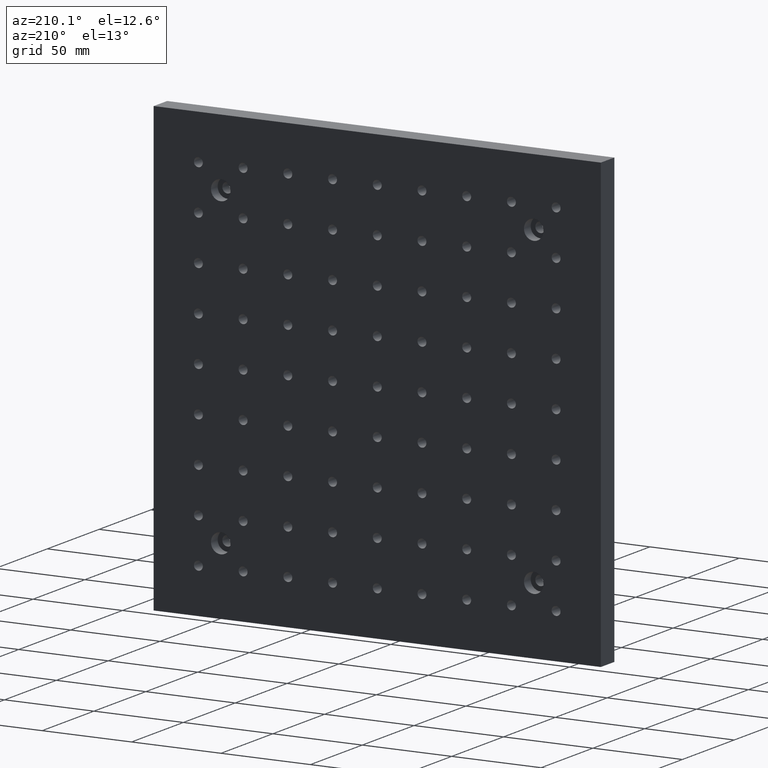
[diagram: clean part render]
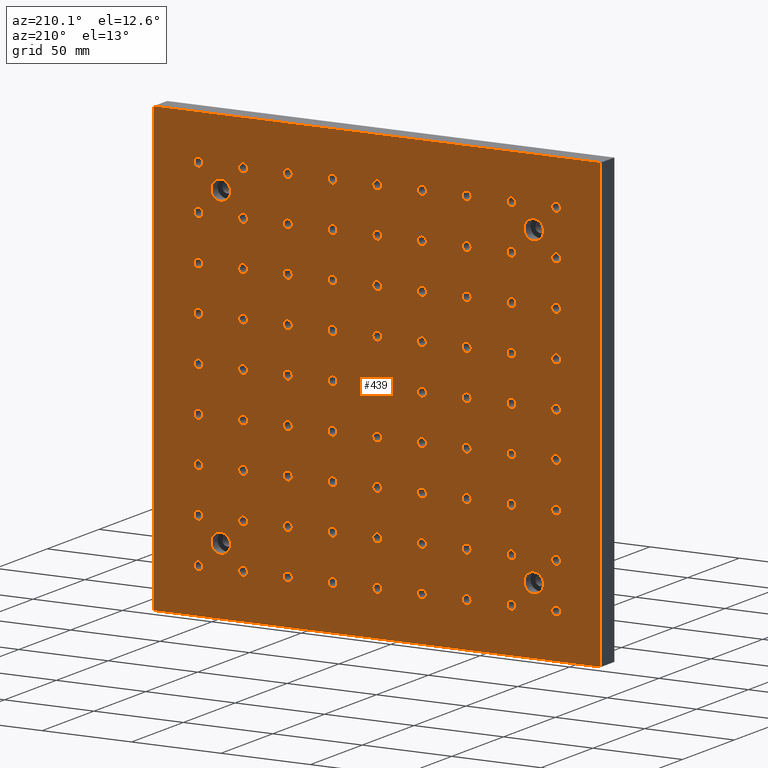
[diagram: same view with one face highlighted and labeled with its STEP entity id]
A machine part, auxiliary view. The second image highlights one B-rep face of the part: STEP entity #439.
In plain terms, the highlighted planar face has unit normal (0, 1, 0).
Its self-contained STEP definition (entity closure, byte-faithful):
#1 = CARTESIAN_POINT ( 'NONE',  ( 2.053912595556539600E-12, 13.00000000000000178, 97.50000000000000000 ) ) ;
#4 = AXIS2_PLACEMENT_3D ( 'NONE', #2720, #707, #1910 ) ;
#6 = AXIS2_PLACEMENT_3D ( 'NONE', #1002, #3008, #1790 ) ;
#8 = CARTESIAN_POINT ( 'NONE',  ( 50.00000000000181899, 13.00000000000000178, 75.00000000000001421 ) ) ;
#9 = CIRCLE ( 'NONE', #2645, 2.499999999999995559 ) ;
#10 = CARTESIAN_POINT ( 'NONE',  ( -100.0000000000000284, 13.00000000000000178, -100.0000000000000000 ) ) ;
#12 = AXIS2_PLACEMENT_3D ( 'NONE', #682, #2443, #185 ) ;
#15 = AXIS2_PLACEMENT_3D ( 'NONE', #1733, #761, #2261 ) ;
#23 = EDGE_CURVE ( 'NONE', #1074, #1074, #1838, .T. ) ;
#25 = DIRECTION ( 'NONE',  ( -0.000000000000000000, -1.000000000000000000, -0.000000000000000000 ) ) ;
#26 = EDGE_LOOP ( 'NONE', ( #1316 ) ) ;
#28 = ORIENTED_EDGE ( 'NONE', *, *, #448, .T. ) ;
#34 = VERTEX_POINT ( 'NONE', #1584 ) ;
#36 = EDGE_CURVE ( 'NONE', #37, #37, #788, .T. ) ;
#37 = VERTEX_POINT ( 'NONE', #583 ) ;
#49 = CARTESIAN_POINT ( 'NONE',  ( 100.0000000000002274, 13.00000000000000178, -77.50000000000001421 ) ) ;
#53 = DIRECTION ( 'NONE',  ( 0.000000000000000000, 0.000000000000000000, -1.000000000000000000 ) ) ;
#55 = CIRCLE ( 'NONE', #315, 2.500000000000002220 ) ;
#56 = CARTESIAN_POINT ( 'NONE',  ( -24.99999999999924682, 13.00000000000000178, -24.99999999999999289 ) ) ;
#58 = CIRCLE ( 'NONE', #3126, 2.499999999999995115 ) ;
#66 = EDGE_LOOP ( 'NONE', ( #2910 ) ) ;
#67 = CARTESIAN_POINT ( 'NONE',  ( -24.99999999999871747, 13.00000000000000178, 24.99999999999999289 ) ) ;
#68 = CARTESIAN_POINT ( 'NONE',  ( 50.00000000000181899, 13.00000000000000178, 72.50000000000001421 ) ) ;
#73 = EDGE_CURVE ( 'NONE', #2863, #2863, #304, .T. ) ;
#74 = EDGE_LOOP ( 'NONE', ( #2728 ) ) ;
#79 = FACE_BOUND ( 'NONE', #170, .T. ) ;
#81 = EDGE_LOOP ( 'NONE', ( #1663 ) ) ;
#82 = CARTESIAN_POINT ( 'NONE',  ( 50.00000000000076739, 13.00000000000000178, -27.49999999999998934 ) ) ;
#85 = CARTESIAN_POINT ( 'NONE',  ( 100.0000000000018048, 13.00000000000000178, 75.00000000000001421 ) ) ;
#87 = EDGE_CURVE ( 'NONE', #2315, #2315, #1628, .T. ) ;
#88 = ORIENTED_EDGE ( 'NONE', *, *, #1010, .T. ) ;
#89 = DIRECTION ( 'NONE',  ( -0.000000000000000000, -1.000000000000000000, -0.000000000000000000 ) ) ;
#92 = FACE_BOUND ( 'NONE', #2228, .T. ) ;
#93 = EDGE_CURVE ( 'NONE', #1604, #1604, #886, .T. ) ;
#94 = EDGE_CURVE ( 'NONE', #2599, #2599, #2058, .T. ) ;
#98 = AXIS2_PLACEMENT_3D ( 'NONE', #2041, #3050, #776 ) ;
#99 = VERTEX_POINT ( 'NONE', #1354 ) ;
#101 = CIRCLE ( 'NONE', #1633, 2.499999999999995115 ) ;
#103 = EDGE_LOOP ( 'NONE', ( #2832 ) ) ;
#108 = CIRCLE ( 'NONE', #536, 2.500000000000002220 ) ;
#110 = DIRECTION ( 'NONE',  ( 0.000000000000000000, 0.000000000000000000, -1.000000000000000000 ) ) ;
#114 = FACE_BOUND ( 'NONE', #2480, .T. ) ;
#115 = VERTEX_POINT ( 'NONE', #856 ) ;
#120 = EDGE_LOOP ( 'NONE', ( #1268 ) ) ;
#129 = FACE_BOUND ( 'NONE', #1506, .T. ) ;
#130 = CARTESIAN_POINT ( 'NONE',  ( -74.99999999999820943, 13.00000000000000178, 72.50000000000001421 ) ) ;
#132 = EDGE_CURVE ( 'NONE', #1061, #1061, #573, .T. ) ;
#133 = CARTESIAN_POINT ( 'NONE',  ( 100.0000000000015348, 13.00000000000000178, 47.50000000000002132 ) ) ;
#135 = DIRECTION ( 'NONE',  ( 0.000000000000000000, 0.000000000000000000, -1.000000000000000000 ) ) ;
#137 = EDGE_CURVE ( 'NONE', #3136, #3136, #1049, .T. ) ;
#145 = FACE_OUTER_BOUND ( 'NONE', #2426, .T. ) ;
#146 = VERTEX_POINT ( 'NONE', #408 ) ;
#148 = EDGE_LOOP ( 'NONE', ( #462 ) ) ;
#150 = VERTEX_POINT ( 'NONE', #614 ) ;
#155 = EDGE_LOOP ( 'NONE', ( #2329 ) ) ;
#166 = FACE_BOUND ( 'NONE', #3049, .T. ) ;
#167 = EDGE_CURVE ( 'NONE', #332, #332, #1472, .T. ) ;
#170 = EDGE_LOOP ( 'NONE', ( #1922 ) ) ;
#172 = DIRECTION ( 'NONE',  ( 0.000000000000000000, 0.000000000000000000, -1.000000000000000000 ) ) ;
#173 = DIRECTION ( 'NONE',  ( -0.000000000000000000, -1.000000000000000000, -0.000000000000000000 ) ) ;
#180 = DIRECTION ( 'NONE',  ( 0.000000000000000000, 0.000000000000000000, -1.000000000000000000 ) ) ;
#182 = CARTESIAN_POINT ( 'NONE',  ( 75.00000000000022737, 13.00000000000000178, -75.00000000000001421 ) ) ;
#183 = EDGE_LOOP ( 'NONE', ( #997 ) ) ;
#185 = DIRECTION ( 'NONE',  ( 0.000000000000000000, 0.000000000000000000, -1.000000000000000000 ) ) ;
#186 = CARTESIAN_POINT ( 'NONE',  ( 50.00000000000024869, 13.00000000000000178, -75.00000000000001421 ) ) ;
#191 = ORIENTED_EDGE ( 'NONE', *, *, #558, .T. ) ;
#194 = CARTESIAN_POINT ( 'NONE',  ( 75.00000000000181899, 13.00000000000000178, 75.00000000000001421 ) ) ;
#196 = FACE_BOUND ( 'NONE', #103, .T. ) ;
#197 = VERTEX_POINT ( 'NONE', #2471 ) ;
#202 = DIRECTION ( 'NONE',  ( 0.000000000000000000, 0.000000000000000000, -1.000000000000000000 ) ) ;
#203 = DIRECTION ( 'NONE',  ( -0.000000000000000000, -1.000000000000000000, -0.000000000000000000 ) ) ;
#211 = CARTESIAN_POINT ( 'NONE',  ( -24.99999999999975842, 13.00000000000000178, -75.00000000000001421 ) ) ;
#218 = DIRECTION ( 'NONE',  ( -0.000000000000000000, -1.000000000000000000, -0.000000000000000000 ) ) ;
#226 = CIRCLE ( 'NONE', #2126, 2.499999999999995559 ) ;
#227 = CARTESIAN_POINT ( 'NONE',  ( -74.99999999999977263, 13.00000000000000178, -75.00000000000001421 ) ) ;
#229 = AXIS2_PLACEMENT_3D ( 'NONE', #2519, #1203, #461 ) ;
#232 = DIRECTION ( 'NONE',  ( -0.000000000000000000, -1.000000000000000000, -0.000000000000000000 ) ) ;
#235 = FACE_BOUND ( 'NONE', #697, .T. ) ;
#236 = CARTESIAN_POINT ( 'NONE',  ( 7.494005416219806648E-13, 13.00000000000000178, -27.49999999999998934 ) ) ;
#239 = EDGE_CURVE ( 'NONE', #2369, #2369, #1307, .T. ) ;
#240 = DIRECTION ( 'NONE',  ( -1.000000000000000000, -0.000000000000000000, 0.000000000000000000 ) ) ;
#243 = DIRECTION ( 'NONE',  ( -0.000000000000000000, -1.000000000000000000, -0.000000000000000000 ) ) ;
#247 = EDGE_LOOP ( 'NONE', ( #2694 ) ) ;
#248 = CARTESIAN_POINT ( 'NONE',  ( -99.99999999999899103, 13.00000000000000178, 0.000000000000000000 ) ) ;
#251 = CARTESIAN_POINT ( 'NONE',  ( 87.49999999999808153, 13.00000000000000178, -93.00000000000001421 ) ) ;
#256 = ORIENTED_EDGE ( 'NONE', *, *, #1764, .T. ) ;
#258 = AXIS2_PLACEMENT_3D ( 'NONE', #2235, #3042, #2990 ) ;
#261 = AXIS2_PLACEMENT_3D ( 'NONE', #596, #3147, #1901 ) ;
#264 = EDGE_CURVE ( 'NONE', #661, #1669, #2015, .T. ) ;
#270 = CIRCLE ( 'NONE', #2123, 2.500000000000002220 ) ;
#271 = DIRECTION ( 'NONE',  ( 0.000000000000000000, 0.000000000000000000, -1.000000000000000000 ) ) ;
#276 = AXIS2_PLACEMENT_3D ( 'NONE', #1892, #2147, #3191 ) ;
#281 = DIRECTION ( 'NONE',  ( -0.000000000000000000, -1.000000000000000000, -0.000000000000000000 ) ) ;
#284 = CARTESIAN_POINT ( 'NONE',  ( -74.99999999999977263, 13.00000000000000178, -77.50000000000001421 ) ) ;
#285 = CARTESIAN_POINT ( 'NONE',  ( 0.000000000000000000, 13.00000000000000178, 125.0000000000000000 ) ) ;
#286 = DIRECTION ( 'NONE',  ( 0.000000000000000000, 0.000000000000000000, -1.000000000000000000 ) ) ;
#288 = ORIENTED_EDGE ( 'NONE', *, *, #1718, .T. ) ;
#290 = ORIENTED_EDGE ( 'NONE', *, *, #401, .T. ) ;
#297 = EDGE_CURVE ( 'NONE', #1857, #1857, #829, .T. ) ;
#301 = CARTESIAN_POINT ( 'NONE',  ( -49.99999999999924682, 13.00000000000000178, -24.99999999999999289 ) ) ;
#304 = CIRCLE ( 'NONE', #2161, 2.500000000000002220 ) ;
#306 = CIRCLE ( 'NONE', #2166, 2.499999999999995559 ) ;
#308 = EDGE_LOOP ( 'NONE', ( #1771 ) ) ;
#311 = EDGE_CURVE ( 'NONE', #99, #99, #3111, .T. ) ;
#314 = CARTESIAN_POINT ( 'NONE',  ( -99.99999999999874944, 13.00000000000000178, 22.50000000000000000 ) ) ;
#315 = AXIS2_PLACEMENT_3D ( 'NONE', #1033, #2046, #3054 ) ;
#321 = CIRCLE ( 'NONE', #1321, 5.500000000000005329 ) ;
#323 = DIRECTION ( 'NONE',  ( 0.000000000000000000, 0.000000000000000000, -1.000000000000000000 ) ) ;
#327 = ORIENTED_EDGE ( 'NONE', *, *, #730, .T. ) ;
#330 = ORIENTED_EDGE ( 'NONE', *, *, #2031, .T. ) ;
#331 = EDGE_CURVE ( 'NONE', #2060, #2060, #2107, .T. ) ;
#332 = VERTEX_POINT ( 'NONE', #2356 ) ;
#336 = EDGE_LOOP ( 'NONE', ( #2375 ) ) ;
#340 = DIRECTION ( 'NONE',  ( 0.000000000000000000, 0.000000000000000000, -1.000000000000000000 ) ) ;
#344 = VERTEX_POINT ( 'NONE', #1352 ) ;
#346 = CARTESIAN_POINT ( 'NONE',  ( -24.99999999999871747, 13.00000000000000178, 22.50000000000000000 ) ) ;
#349 = CARTESIAN_POINT ( 'NONE',  ( 25.00000000000021672, 13.00000000000000178, -75.00000000000001421 ) ) ;
#352 = EDGE_LOOP ( 'NONE', ( #28 ) ) ;
#355 = CARTESIAN_POINT ( 'NONE',  ( 75.00000000000206057, 13.00000000000000178, 100.0000000000000000 ) ) ;
#358 = CARTESIAN_POINT ( 'NONE',  ( -50.00000000000002842, 13.00000000000000178, -102.5000000000000142 ) ) ;
#368 = AXIS2_PLACEMENT_3D ( 'NONE', #194, #2742, #2222 ) ;
#374 = ORIENTED_EDGE ( 'NONE', *, *, #622, .T. ) ;
#375 = CIRCLE ( 'NONE', #1492, 2.499999999999995115 ) ;
#376 = FACE_BOUND ( 'NONE', #820, .T. ) ;
#377 = CARTESIAN_POINT ( 'NONE',  ( 25.00000000000127187, 13.00000000000000178, 22.50000000000000000 ) ) ;
#382 = DIRECTION ( 'NONE',  ( -0.000000000000000000, -1.000000000000000000, -0.000000000000000000 ) ) ;
#390 = EDGE_LOOP ( 'NONE', ( #1428 ) ) ;
#391 = FACE_BOUND ( 'NONE', #1626, .T. ) ;
#392 = VERTEX_POINT ( 'NONE', #2193 ) ;
#397 = CARTESIAN_POINT ( 'NONE',  ( 1.540434446667404700E-12, 13.00000000000000178, 50.00000000000001421 ) ) ;
#401 = EDGE_CURVE ( 'NONE', #1567, #1567, #3063, .T. ) ;
#403 = EDGE_LOOP ( 'NONE', ( #1177 ) ) ;
#404 = CARTESIAN_POINT ( 'NONE',  ( -24.99999999999845457, 13.00000000000000178, 50.00000000000001421 ) ) ;
#405 = DIRECTION ( 'NONE',  ( 0.000000000000000000, 0.000000000000000000, -1.000000000000000000 ) ) ;
#406 = ORIENTED_EDGE ( 'NONE', *, *, #297, .T. ) ;
#407 = FACE_BOUND ( 'NONE', #403, .T. ) ;
#408 = CARTESIAN_POINT ( 'NONE',  ( -74.99999999999795364, 13.00000000000000178, 97.50000000000000000 ) ) ;
#409 = CIRCLE ( 'NONE', #3164, 2.499999999999995559 ) ;
#416 = DIRECTION ( 'NONE',  ( 0.000000000000000000, 0.000000000000000000, -1.000000000000000000 ) ) ;
#425 = CIRCLE ( 'NONE', #2022, 2.499999999999995115 ) ;
#428 = FACE_BOUND ( 'NONE', #2868, .T. ) ;
#433 = ORIENTED_EDGE ( 'NONE', *, *, #264, .T. ) ;
#435 = CARTESIAN_POINT ( 'NONE',  ( -49.99999999999899103, 13.00000000000000178, -2.499999999999995559 ) ) ;
#439 = ADVANCED_FACE ( 'NONE', ( #376, #2365, #114, #3130, #1123, #2153, #645, #391, #1351, #1667, #92, #1336, #1387, #2401, #129, #3181, #1140, #3162, #2120, #2353, #662, #855, #2170, #79, #1600, #1086, #3109, #887, #1869, #2137, #2874, #870, #2911, #1652, #2418, #611, #2100, #834, #2625, #1849, #1367, #2610, #2660, #1882, #2890, #145, #625, #1632, #2695, #3001, #2470, #2192, #2436, #3270, #1175, #994, #1470, #407, #979, #1440, #1952, #2006, #729, #3019, #2945, #2729, #1735, #2508, #1707, #2207, #3197, #449, #2263, #3213, #676, #746, #166, #1686, #925, #428, #481, #1489, #196, #2675, #235, #3256 ), #1205, .T. ) ;
#448 = EDGE_CURVE ( 'NONE', #2664, #2664, #1004, .T. ) ;
#449 = FACE_BOUND ( 'NONE', #2941, .T. ) ;
#453 = CARTESIAN_POINT ( 'NONE',  ( -99.99999999999846523, 13.00000000000000178, 50.00000000000001421 ) ) ;
#461 = DIRECTION ( 'NONE',  ( 0.000000000000000000, 0.000000000000000000, -1.000000000000000000 ) ) ;
#462 = ORIENTED_EDGE ( 'NONE', *, *, #1099, .T. ) ;
#469 = DIRECTION ( 'NONE',  ( -0.000000000000000000, -1.000000000000000000, -0.000000000000000000 ) ) ;
#471 = LINE ( 'NONE', #285, #747 ) ;
#473 = CIRCLE ( 'NONE', #2583, 5.500000000000005329 ) ;
#479 = DIRECTION ( 'NONE',  ( -0.000000000000000000, -1.000000000000000000, -0.000000000000000000 ) ) ;
#481 = FACE_BOUND ( 'NONE', #2605, .T. ) ;
#483 = CIRCLE ( 'NONE', #1109, 2.500000000000002220 ) ;
#489 = EDGE_CURVE ( 'NONE', #2648, #2648, #2111, .T. ) ;
#491 = CARTESIAN_POINT ( 'NONE',  ( -25.00000000000002132, 13.00000000000000178, -100.0000000000000000 ) ) ;
#499 = DIRECTION ( 'NONE',  ( -0.000000000000000000, -1.000000000000000000, -0.000000000000000000 ) ) ;
#500 = VERTEX_POINT ( 'NONE', #236 ) ;
#502 = CARTESIAN_POINT ( 'NONE',  ( 75.00000000000153477, 13.00000000000000178, 47.50000000000002132 ) ) ;
#504 = DIRECTION ( 'NONE',  ( 0.000000000000000000, 0.000000000000000000, -1.000000000000000000 ) ) ;
#509 = EDGE_LOOP ( 'NONE', ( #2091 ) ) ;
#513 = DIRECTION ( 'NONE',  ( 0.000000000000000000, 0.000000000000000000, -1.000000000000000000 ) ) ;
#514 = VERTEX_POINT ( 'NONE', #1 ) ;
#516 = VERTEX_POINT ( 'NONE', #251 ) ;
#524 = AXIS2_PLACEMENT_3D ( 'NONE', #1145, #3204, #416 ) ;
#526 = EDGE_LOOP ( 'NONE', ( #2194 ) ) ;
#527 = AXIS2_PLACEMENT_3D ( 'NONE', #3103, #828, #340 ) ;
#531 = CIRCLE ( 'NONE', #2331, 2.499999999999995115 ) ;
#533 = ORIENTED_EDGE ( 'NONE', *, *, #1859, .T. ) ;
#535 = VERTEX_POINT ( 'NONE', #1291 ) ;
#536 = AXIS2_PLACEMENT_3D ( 'NONE', #2515, #243, #1254 ) ;
#545 = CIRCLE ( 'NONE', #1224, 2.499999999999995115 ) ;
#553 = CARTESIAN_POINT ( 'NONE',  ( 100.0000000000010516, 13.00000000000000178, -2.499999999999995559 ) ) ;
#554 = CARTESIAN_POINT ( 'NONE',  ( -49.99999999999872813, 13.00000000000000178, 24.99999999999999289 ) ) ;
#558 = EDGE_CURVE ( 'NONE', #3217, #3217, #739, .T. ) ;
#560 = DIRECTION ( 'NONE',  ( 0.000000000000000000, 0.000000000000000000, -1.000000000000000000 ) ) ;
#565 = VERTEX_POINT ( 'NONE', #553 ) ;
#568 = ORIENTED_EDGE ( 'NONE', *, *, #2756, .T. ) ;
#573 = CIRCLE ( 'NONE', #524, 2.499999999999995115 ) ;
#574 = AXIS2_PLACEMENT_3D ( 'NONE', #2350, #2871, #323 ) ;
#579 = AXIS2_PLACEMENT_3D ( 'NONE', #1008, #3032, #2565 ) ;
#583 = CARTESIAN_POINT ( 'NONE',  ( 25.00000000000152056, 13.00000000000000178, 47.50000000000002132 ) ) ;
#589 = ORIENTED_EDGE ( 'NONE', *, *, #1212, .T. ) ;
#590 = CIRCLE ( 'NONE', #963, 2.499999999999995115 ) ;
#594 = DIRECTION ( 'NONE',  ( 0.000000000000000000, 0.000000000000000000, -1.000000000000000000 ) ) ;
#596 = CARTESIAN_POINT ( 'NONE',  ( -49.99999999999976552, 13.00000000000000178, -75.00000000000001421 ) ) ;
#597 = VERTEX_POINT ( 'NONE', #836 ) ;
#599 = CARTESIAN_POINT ( 'NONE',  ( 1.540434446667404700E-12, 13.00000000000000178, 47.50000000000002132 ) ) ;
#611 = FACE_BOUND ( 'NONE', #1438, .T. ) ;
#614 = CARTESIAN_POINT ( 'NONE',  ( 100.0000000000012790, 13.00000000000000178, 22.50000000000000000 ) ) ;
#618 = EDGE_CURVE ( 'NONE', #1895, #661, #3090, .T. ) ;
#622 = EDGE_CURVE ( 'NONE', #2421, #2421, #473, .T. ) ;
#625 = FACE_BOUND ( 'NONE', #247, .T. ) ;
#626 = VERTEX_POINT ( 'NONE', #1634 ) ;
#627 = AXIS2_PLACEMENT_3D ( 'NONE', #1674, #173, #1711 ) ;
#636 = CARTESIAN_POINT ( 'NONE',  ( 7.494005416219806648E-13, 13.00000000000000178, -24.99999999999999289 ) ) ;
#644 = AXIS2_PLACEMENT_3D ( 'NONE', #355, #938, #1385 ) ;
#645 = FACE_BOUND ( 'NONE', #1007, .T. ) ;
#647 = VERTEX_POINT ( 'NONE', #1653 ) ;
#649 = EDGE_LOOP ( 'NONE', ( #1563 ) ) ;
#650 = EDGE_CURVE ( 'NONE', #2895, #2895, #306, .T. ) ;
#651 = CARTESIAN_POINT ( 'NONE',  ( 1.013078509970455343E-12, 13.00000000000000178, -2.499999999999995559 ) ) ;
#652 = CARTESIAN_POINT ( 'NONE',  ( 87.49999999999808153, 13.00000000000000178, 87.50000000000001421 ) ) ;
#653 = DIRECTION ( 'NONE',  ( 0.000000000000000000, 0.000000000000000000, -1.000000000000000000 ) ) ;
#661 = VERTEX_POINT ( 'NONE', #2276 ) ;
#662 = FACE_BOUND ( 'NONE', #1361, .T. ) ;
#665 = EDGE_LOOP ( 'NONE', ( #1198 ) ) ;
#666 = CARTESIAN_POINT ( 'NONE',  ( -99.99999999999899103, 13.00000000000000178, -2.499999999999995559 ) ) ;
#674 = DIRECTION ( 'NONE',  ( 0.000000000000000000, 0.000000000000000000, -1.000000000000000000 ) ) ;
#676 = FACE_BOUND ( 'NONE', #2288, .T. ) ;
#677 = VERTEX_POINT ( 'NONE', #2154 ) ;
#682 = CARTESIAN_POINT ( 'NONE',  ( 100.0000000000007532, 13.00000000000000178, -24.99999999999999289 ) ) ;
#686 = EDGE_CURVE ( 'NONE', #913, #913, #3018, .T. ) ;
#687 = EDGE_LOOP ( 'NONE', ( #2833 ) ) ;
#690 = EDGE_CURVE ( 'NONE', #150, #150, #790, .T. ) ;
#693 = CIRCLE ( 'NONE', #2117, 2.499999999999995115 ) ;
#694 = DIRECTION ( 'NONE',  ( -0.000000000000000000, -1.000000000000000000, -0.000000000000000000 ) ) ;
#696 = CARTESIAN_POINT ( 'NONE',  ( -50.00000000000002842, 13.00000000000000178, -100.0000000000000000 ) ) ;
#697 = EDGE_LOOP ( 'NONE', ( #2620 ) ) ;
#705 = CARTESIAN_POINT ( 'NONE',  ( -75.00000000000004263, 13.00000000000000178, -100.0000000000000000 ) ) ;
#707 = DIRECTION ( 'NONE',  ( -0.000000000000000000, -1.000000000000000000, -0.000000000000000000 ) ) ;
#713 = CARTESIAN_POINT ( 'NONE',  ( 4.996003610813204432E-13, 13.00000000000000178, -50.00000000000000000 ) ) ;
#714 = EDGE_LOOP ( 'NONE', ( #533 ) ) ;
#717 = EDGE_LOOP ( 'NONE', ( #191 ) ) ;
#725 = EDGE_CURVE ( 'NONE', #2628, #2628, #1954, .T. ) ;
#729 = FACE_BOUND ( 'NONE', #2633, .T. ) ;
#730 = EDGE_CURVE ( 'NONE', #1159, #1159, #2061, .T. ) ;
#733 = VERTEX_POINT ( 'NONE', #982 ) ;
#739 = CIRCLE ( 'NONE', #1741, 2.499999999999995559 ) ;
#742 = DIRECTION ( 'NONE',  ( -0.000000000000000000, -1.000000000000000000, -0.000000000000000000 ) ) ;
#743 = AXIS2_PLACEMENT_3D ( 'NONE', #3210, #694, #1702 ) ;
#746 = FACE_BOUND ( 'NONE', #1092, .T. ) ;
#747 = VECTOR ( 'NONE', #2034, 1000.000000000000000 ) ;
#748 = VERTEX_POINT ( 'NONE', #2264 ) ;
#750 = AXIS2_PLACEMENT_3D ( 'NONE', #2702, #2950, #1461 ) ;
#754 = CIRCLE ( 'NONE', #1855, 2.499999999999995559 ) ;
#755 = DIRECTION ( 'NONE',  ( 0.000000000000000000, 0.000000000000000000, -1.000000000000000000 ) ) ;
#759 = ORIENTED_EDGE ( 'NONE', *, *, #686, .T. ) ;
#761 = DIRECTION ( 'NONE',  ( -0.000000000000000000, -1.000000000000000000, -0.000000000000000000 ) ) ;
#768 = CARTESIAN_POINT ( 'NONE',  ( 25.00000000000074252, 13.00000000000000178, -24.99999999999999289 ) ) ;
#773 = ORIENTED_EDGE ( 'NONE', *, *, #2312, .T. ) ;
#776 = DIRECTION ( 'NONE',  ( 0.000000000000000000, 0.000000000000000000, -1.000000000000000000 ) ) ;
#780 = EDGE_CURVE ( 'NONE', #1924, #1924, #2634, .T. ) ;
#788 = CIRCLE ( 'NONE', #2536, 2.499999999999995115 ) ;
#790 = CIRCLE ( 'NONE', #574, 2.499999999999995115 ) ;
#793 = DIRECTION ( 'NONE',  ( 0.000000000000000000, 0.000000000000000000, -1.000000000000000000 ) ) ;
#797 = CIRCLE ( 'NONE', #1174, 2.500000000000002220 ) ;
#806 = ORIENTED_EDGE ( 'NONE', *, *, #3138, .T. ) ;
#807 = CARTESIAN_POINT ( 'NONE',  ( 125.0000000000000000, 13.00000000000000178, 0.000000000000000000 ) ) ;
#810 = ORIENTED_EDGE ( 'NONE', *, *, #2407, .T. ) ;
#811 = VERTEX_POINT ( 'NONE', #284 ) ;
#815 = DIRECTION ( 'NONE',  ( -0.000000000000000000, -1.000000000000000000, -0.000000000000000000 ) ) ;
#816 = EDGE_CURVE ( 'NONE', #1669, #2836, #1347, .T. ) ;
#820 = EDGE_LOOP ( 'NONE', ( #3128 ) ) ;
#823 = CARTESIAN_POINT ( 'NONE',  ( 50.00000000000024869, 13.00000000000000178, -77.50000000000001421 ) ) ;
#828 = DIRECTION ( 'NONE',  ( -0.000000000000000000, -1.000000000000000000, -0.000000000000000000 ) ) ;
#829 = CIRCLE ( 'NONE', #1264, 2.499999999999995115 ) ;
#834 = FACE_BOUND ( 'NONE', #2400, .T. ) ;
#835 = AXIS2_PLACEMENT_3D ( 'NONE', #211, #1202, #2467 ) ;
#836 = CARTESIAN_POINT ( 'NONE',  ( -24.99999999999820943, 13.00000000000000178, 72.50000000000001421 ) ) ;
#837 = EDGE_LOOP ( 'NONE', ( #1459 ) ) ;
#838 = AXIS2_PLACEMENT_3D ( 'NONE', #1463, #1447, #1962 ) ;
#844 = EDGE_LOOP ( 'NONE', ( #1918 ) ) ;
#846 = DIRECTION ( 'NONE',  ( 0.000000000000000000, 0.000000000000000000, -1.000000000000000000 ) ) ;
#855 = FACE_BOUND ( 'NONE', #1987, .T. ) ;
#856 = CARTESIAN_POINT ( 'NONE',  ( 75.00000000000206057, 13.00000000000000178, 97.50000000000000000 ) ) ;
#857 = ORIENTED_EDGE ( 'NONE', *, *, #36, .T. ) ;
#861 = ORIENTED_EDGE ( 'NONE', *, *, #650, .T. ) ;
#868 = CARTESIAN_POINT ( 'NONE',  ( -74.99999999999899103, 13.00000000000000178, 0.000000000000000000 ) ) ;
#870 = FACE_BOUND ( 'NONE', #2463, .T. ) ;
#871 = VERTEX_POINT ( 'NONE', #1388 ) ;
#873 = CARTESIAN_POINT ( 'NONE',  ( -99.99999999999950262, 13.00000000000000178, -52.50000000000000000 ) ) ;
#877 = DIRECTION ( 'NONE',  ( 0.000000000000000000, 0.000000000000000000, -1.000000000000000000 ) ) ;
#881 = CARTESIAN_POINT ( 'NONE',  ( -99.99999999999950262, 13.00000000000000178, -50.00000000000000000 ) ) ;
#884 = DIRECTION ( 'NONE',  ( 0.000000000000000000, 0.000000000000000000, -1.000000000000000000 ) ) ;
#886 = CIRCLE ( 'NONE', #1685, 2.499999999999995115 ) ;
#887 = FACE_BOUND ( 'NONE', #717, .T. ) ;
#891 = CIRCLE ( 'NONE', #2842, 2.499999999999995115 ) ;
#892 = VERTEX_POINT ( 'NONE', #1444 ) ;
#899 = DIRECTION ( 'NONE',  ( 0.000000000000000000, 0.000000000000000000, -1.000000000000000000 ) ) ;
#901 = CIRCLE ( 'NONE', #1851, 2.500000000000002220 ) ;
#911 = CIRCLE ( 'NONE', #229, 2.500000000000002220 ) ;
#912 = ORIENTED_EDGE ( 'NONE', *, *, #94, .T. ) ;
#913 = VERTEX_POINT ( 'NONE', #1637 ) ;
#915 = DIRECTION ( 'NONE',  ( 0.000000000000000000, 0.000000000000000000, -1.000000000000000000 ) ) ;
#918 = DIRECTION ( 'NONE',  ( -0.000000000000000000, -1.000000000000000000, -0.000000000000000000 ) ) ;
#925 = FACE_BOUND ( 'NONE', #1705, .T. ) ;
#926 = VERTEX_POINT ( 'NONE', #2891 ) ;
#927 = EDGE_LOOP ( 'NONE', ( #1774 ) ) ;
#928 = EDGE_CURVE ( 'NONE', #892, #892, #2491, .T. ) ;
#929 = CARTESIAN_POINT ( 'NONE',  ( 50.00000000000052580, 13.00000000000000178, -52.50000000000000000 ) ) ;
#930 = DIRECTION ( 'NONE',  ( 0.000000000000000000, 0.000000000000000000, -1.000000000000000000 ) ) ;
#938 = DIRECTION ( 'NONE',  ( -0.000000000000000000, -1.000000000000000000, -0.000000000000000000 ) ) ;
#940 = DIRECTION ( 'NONE',  ( -0.000000000000000000, -1.000000000000000000, -0.000000000000000000 ) ) ;
#949 = EDGE_LOOP ( 'NONE', ( #773 ) ) ;
#952 = AXIS2_PLACEMENT_3D ( 'NONE', #881, #1120, #2606 ) ;
#958 = DIRECTION ( 'NONE',  ( -0.000000000000000000, -1.000000000000000000, -0.000000000000000000 ) ) ;
#960 = CARTESIAN_POINT ( 'NONE',  ( 100.0000000000015348, 13.00000000000000178, 50.00000000000001421 ) ) ;
#962 = VERTEX_POINT ( 'NONE', #3271 ) ;
#963 = AXIS2_PLACEMENT_3D ( 'NONE', #2213, #2734, #1445 ) ;
#967 = EDGE_CURVE ( 'NONE', #2917, #2917, #3229, .T. ) ;
#976 = DIRECTION ( 'NONE',  ( -0.000000000000000000, -1.000000000000000000, -0.000000000000000000 ) ) ;
#979 = FACE_BOUND ( 'NONE', #148, .T. ) ;
#980 = VERTEX_POINT ( 'NONE', #3002 ) ;
#982 = CARTESIAN_POINT ( 'NONE',  ( -49.99999999999924682, 13.00000000000000178, -27.49999999999998934 ) ) ;
#990 = EDGE_CURVE ( 'NONE', #3202, #3202, #2066, .T. ) ;
#991 = CARTESIAN_POINT ( 'NONE',  ( -125.0000000000000000, 13.00000000000000178, 125.0000000000000000 ) ) ;
#994 = FACE_BOUND ( 'NONE', #949, .T. ) ;
#997 = ORIENTED_EDGE ( 'NONE', *, *, #2211, .T. ) ;
#1002 = CARTESIAN_POINT ( 'NONE',  ( 1.276756478318930021E-12, 13.00000000000000178, 24.99999999999999289 ) ) ;
#1004 = CIRCLE ( 'NONE', #2744, 2.500000000000002220 ) ;
#1007 = EDGE_LOOP ( 'NONE', ( #861 ) ) ;
#1008 = CARTESIAN_POINT ( 'NONE',  ( 2.359223927328457648E-13, 13.00000000000000178, -75.00000000000001421 ) ) ;
#1010 = EDGE_CURVE ( 'NONE', #1940, #1940, #3021, .T. ) ;
#1011 = CIRCLE ( 'NONE', #4, 2.499999999999995115 ) ;
#1015 = AXIS2_PLACEMENT_3D ( 'NONE', #2667, #1197, #1408 ) ;
#1018 = VERTEX_POINT ( 'NONE', #2539 ) ;
#1019 = CARTESIAN_POINT ( 'NONE',  ( 0.000000000000000000, 13.00000000000000178, -125.0000000000000000 ) ) ;
#1020 = AXIS2_PLACEMENT_3D ( 'NONE', #1899, #2909, #674 ) ;
#1024 = EDGE_LOOP ( 'NONE', ( #2484 ) ) ;
#1026 = ORIENTED_EDGE ( 'NONE', *, *, #23, .T. ) ;
#1028 = EDGE_CURVE ( 'NONE', #2212, #2212, #2230, .T. ) ;
#1033 = CARTESIAN_POINT ( 'NONE',  ( -24.99999999999820943, 13.00000000000000178, 75.00000000000001421 ) ) ;
#1037 = DIRECTION ( 'NONE',  ( -0.000000000000000000, -1.000000000000000000, -0.000000000000000000 ) ) ;
#1042 = VERTEX_POINT ( 'NONE', #1319 ) ;
#1045 = CARTESIAN_POINT ( 'NONE',  ( 25.00000000000102318, 13.00000000000000178, 0.000000000000000000 ) ) ;
#1046 = AXIS2_PLACEMENT_3D ( 'NONE', #554, #1555, #3071 ) ;
#1049 = CIRCLE ( 'NONE', #2897, 2.500000000000002220 ) ;
#1050 = EDGE_LOOP ( 'NONE', ( #2847 ) ) ;
#1060 = EDGE_CURVE ( 'NONE', #733, #733, #101, .T. ) ;
#1061 = VERTEX_POINT ( 'NONE', #314 ) ;
#1065 = DIRECTION ( 'NONE',  ( 0.000000000000000000, 0.000000000000000000, -1.000000000000000000 ) ) ;
#1066 = CIRCLE ( 'NONE', #1762, 2.499999999999995115 ) ;
#1073 = VERTEX_POINT ( 'NONE', #68 ) ;
#1074 = VERTEX_POINT ( 'NONE', #2572 ) ;
#1076 = ORIENTED_EDGE ( 'NONE', *, *, #816, .T. ) ;
#1086 = FACE_BOUND ( 'NONE', #1666, .T. ) ;
#1090 = CARTESIAN_POINT ( 'NONE',  ( 1.790234627208064921E-12, 13.00000000000000178, 72.50000000000001421 ) ) ;
#1092 = EDGE_LOOP ( 'NONE', ( #1932 ) ) ;
#1099 = EDGE_CURVE ( 'NONE', #2771, #2771, #531, .T. ) ;
#1107 = EDGE_CURVE ( 'NONE', #2251, #2251, #891, .T. ) ;
#1109 = AXIS2_PLACEMENT_3D ( 'NONE', #85, #2866, #1607 ) ;
#1120 = DIRECTION ( 'NONE',  ( -0.000000000000000000, -1.000000000000000000, -0.000000000000000000 ) ) ;
#1123 = FACE_BOUND ( 'NONE', #1164, .T. ) ;
#1124 = EDGE_CURVE ( 'NONE', #2266, #2266, #2962, .T. ) ;
#1134 = DIRECTION ( 'NONE',  ( 0.000000000000000000, 0.000000000000000000, -1.000000000000000000 ) ) ;
#1139 = ORIENTED_EDGE ( 'NONE', *, *, #489, .T. ) ;
#1140 = FACE_BOUND ( 'NONE', #1201, .T. ) ;
#1144 = DIRECTION ( 'NONE',  ( 0.000000000000000000, 0.000000000000000000, 1.000000000000000000 ) ) ;
#1145 = CARTESIAN_POINT ( 'NONE',  ( -99.99999999999874944, 13.00000000000000178, 24.99999999999999289 ) ) ;
#1153 = ORIENTED_EDGE ( 'NONE', *, *, #2580, .T. ) ;
#1158 = VECTOR ( 'NONE', #1331, 1000.000000000000000 ) ;
#1159 = VERTEX_POINT ( 'NONE', #1906 ) ;
#1160 = DIRECTION ( 'NONE',  ( -0.000000000000000000, -1.000000000000000000, -0.000000000000000000 ) ) ;
#1161 = DIRECTION ( 'NONE',  ( 0.000000000000000000, 0.000000000000000000, -1.000000000000000000 ) ) ;
#1164 = EDGE_LOOP ( 'NONE', ( #3124 ) ) ;
#1165 = CIRCLE ( 'NONE', #3025, 2.500000000000002220 ) ;
#1168 = AXIS2_PLACEMENT_3D ( 'NONE', #1045, #1768, #2787 ) ;
#1172 = DIRECTION ( 'NONE',  ( 0.000000000000000000, 0.000000000000000000, -1.000000000000000000 ) ) ;
#1174 = AXIS2_PLACEMENT_3D ( 'NONE', #2727, #2024, #1973 ) ;
#1175 = FACE_BOUND ( 'NONE', #3212, .T. ) ;
#1176 = CARTESIAN_POINT ( 'NONE',  ( -49.99999999999847944, 13.00000000000000178, 47.50000000000002132 ) ) ;
#1177 = ORIENTED_EDGE ( 'NONE', *, *, #2422, .T. ) ;
#1187 = CARTESIAN_POINT ( 'NONE',  ( 100.0000000000005258, 13.00000000000000178, -50.00000000000000000 ) ) ;
#1191 = VERTEX_POINT ( 'NONE', #2488 ) ;
#1197 = DIRECTION ( 'NONE',  ( 0.000000000000000000, 1.000000000000000000, 0.000000000000000000 ) ) ;
#1198 = ORIENTED_EDGE ( 'NONE', *, *, #725, .T. ) ;
#1201 = EDGE_LOOP ( 'NONE', ( #1139 ) ) ;
#1202 = DIRECTION ( 'NONE',  ( -0.000000000000000000, -1.000000000000000000, -0.000000000000000000 ) ) ;
#1203 = DIRECTION ( 'NONE',  ( -0.000000000000000000, -1.000000000000000000, -0.000000000000000000 ) ) ;
#1205 = PLANE ( 'NONE',  #1214 ) ;
#1207 = VERTEX_POINT ( 'NONE', #2986 ) ;
#1212 = EDGE_CURVE ( 'NONE', #3273, #3273, #693, .T. ) ;
#1214 = AXIS2_PLACEMENT_3D ( 'NONE', #1419, #2486, #2965 ) ;
#1221 = ORIENTED_EDGE ( 'NONE', *, *, #331, .T. ) ;
#1223 = DIRECTION ( 'NONE',  ( 0.000000000000000000, 0.000000000000000000, -1.000000000000000000 ) ) ;
#1224 = AXIS2_PLACEMENT_3D ( 'NONE', #1187, #1650, #180 ) ;
#1230 = CARTESIAN_POINT ( 'NONE',  ( -99.99999999999795364, 13.00000000000000178, 97.50000000000000000 ) ) ;
#1247 = VERTEX_POINT ( 'NONE', #2208 ) ;
#1254 = DIRECTION ( 'NONE',  ( 0.000000000000000000, 0.000000000000000000, -1.000000000000000000 ) ) ;
#1255 = ORIENTED_EDGE ( 'NONE', *, *, #73, .T. ) ;
#1258 = EDGE_LOOP ( 'NONE', ( #2882 ) ) ;
#1259 = DIRECTION ( 'NONE',  ( 0.000000000000000000, 0.000000000000000000, -1.000000000000000000 ) ) ;
#1264 = AXIS2_PLACEMENT_3D ( 'NONE', #67, #469, #2267 ) ;
#1268 = ORIENTED_EDGE ( 'NONE', *, *, #311, .T. ) ;
#1269 = EDGE_CURVE ( 'NONE', #1018, #1018, #2589, .T. ) ;
#1270 = CARTESIAN_POINT ( 'NONE',  ( -74.99999999999924682, 13.00000000000000178, -24.99999999999999289 ) ) ;
#1271 = AXIS2_PLACEMENT_3D ( 'NONE', #2188, #976, #1916 ) ;
#1278 = AXIS2_PLACEMENT_3D ( 'NONE', #3242, #281, #202 ) ;
#1279 = CARTESIAN_POINT ( 'NONE',  ( -87.49999999999808153, 13.00000000000000178, 93.00000000000001421 ) ) ;
#1282 = DIRECTION ( 'NONE',  ( -0.000000000000000000, -1.000000000000000000, -0.000000000000000000 ) ) ;
#1291 = CARTESIAN_POINT ( 'NONE',  ( 25.00000000000102318, 13.00000000000000178, -2.499999999999995559 ) ) ;
#1295 = ORIENTED_EDGE ( 'NONE', *, *, #1897, .T. ) ;
#1301 = ORIENTED_EDGE ( 'NONE', *, *, #2064, .T. ) ;
#1302 = EDGE_CURVE ( 'NONE', #3040, #3040, #2544, .T. ) ;
#1305 = CARTESIAN_POINT ( 'NONE',  ( 74.99999999999998579, 13.00000000000000178, -100.0000000000000000 ) ) ;
#1307 = CIRCLE ( 'NONE', #3014, 2.500000000000002220 ) ;
#1308 = EDGE_LOOP ( 'NONE', ( #1974 ) ) ;
#1314 = AXIS2_PLACEMENT_3D ( 'NONE', #349, #2881, #846 ) ;
#1316 = ORIENTED_EDGE ( 'NONE', *, *, #2678, .T. ) ;
#1317 = DIRECTION ( 'NONE',  ( 0.000000000000000000, 0.000000000000000000, -1.000000000000000000 ) ) ;
#1318 = AXIS2_PLACEMENT_3D ( 'NONE', #3100, #1840, #1622 ) ;
#1319 = CARTESIAN_POINT ( 'NONE',  ( 1.276756478318930021E-12, 13.00000000000000178, 22.50000000000000000 ) ) ;
#1320 = CIRCLE ( 'NONE', #1583, 2.500000000000002220 ) ;
#1321 = AXIS2_PLACEMENT_3D ( 'NONE', #652, #2896, #1144 ) ;
#1324 = CIRCLE ( 'NONE', #2553, 2.500000000000002220 ) ;
#1331 = DIRECTION ( 'NONE',  ( 0.000000000000000000, -0.000000000000000000, 1.000000000000000000 ) ) ;
#1336 = FACE_BOUND ( 'NONE', #2778, .T. ) ;
#1347 = LINE ( 'NONE', #2591, #1158 ) ;
#1351 = FACE_BOUND ( 'NONE', #2347, .T. ) ;
#1352 = CARTESIAN_POINT ( 'NONE',  ( 50.00000000000104450, 13.00000000000000178, -2.499999999999995559 ) ) ;
#1354 = CARTESIAN_POINT ( 'NONE',  ( 24.99999999999997158, 13.00000000000000178, -102.5000000000000142 ) ) ;
#1358 = ORIENTED_EDGE ( 'NONE', *, *, #3249, .T. ) ;
#1361 = EDGE_LOOP ( 'NONE', ( #3196 ) ) ;
#1367 = FACE_BOUND ( 'NONE', #1700, .T. ) ;
#1368 = EDGE_CURVE ( 'NONE', #2510, #2510, #483, .T. ) ;
#1371 = VERTEX_POINT ( 'NONE', #1921 ) ;
#1384 = CIRCLE ( 'NONE', #1541, 2.499999999999995115 ) ;
#1385 = DIRECTION ( 'NONE',  ( 0.000000000000000000, 0.000000000000000000, -1.000000000000000000 ) ) ;
#1386 = ORIENTED_EDGE ( 'NONE', *, *, #2927, .T. ) ;
#1387 = FACE_BOUND ( 'NONE', #1258, .T. ) ;
#1388 = CARTESIAN_POINT ( 'NONE',  ( 100.0000000000007532, 13.00000000000000178, -27.49999999999998934 ) ) ;
#1392 = DIRECTION ( 'NONE',  ( 0.000000000000000000, 0.000000000000000000, -1.000000000000000000 ) ) ;
#1402 = CARTESIAN_POINT ( 'NONE',  ( 4.996003610813204432E-13, 13.00000000000000178, -52.50000000000000000 ) ) ;
#1408 = DIRECTION ( 'NONE',  ( 0.000000000000000000, 0.000000000000000000, -1.000000000000000000 ) ) ;
#1415 = AXIS2_PLACEMENT_3D ( 'NONE', #10, #1746, #1482 ) ;
#1419 = CARTESIAN_POINT ( 'NONE',  ( 0.000000000000000000, 13.00000000000000178, 0.000000000000000000 ) ) ;
#1421 = AXIS2_PLACEMENT_3D ( 'NONE', #2164, #89, #110 ) ;
#1425 = DIRECTION ( 'NONE',  ( 0.000000000000000000, 0.000000000000000000, -1.000000000000000000 ) ) ;
#1428 = ORIENTED_EDGE ( 'NONE', *, *, #2791, .T. ) ;
#1438 = EDGE_LOOP ( 'NONE', ( #1615 ) ) ;
#1439 = CIRCLE ( 'NONE', #15, 2.500000000000002220 ) ;
#1440 = FACE_BOUND ( 'NONE', #2001, .T. ) ;
#1444 = CARTESIAN_POINT ( 'NONE',  ( -24.99999999999975842, 13.00000000000000178, -77.50000000000001421 ) ) ;
#1445 = DIRECTION ( 'NONE',  ( 0.000000000000000000, 0.000000000000000000, -1.000000000000000000 ) ) ;
#1447 = DIRECTION ( 'NONE',  ( 0.000000000000000000, 1.000000000000000000, 0.000000000000000000 ) ) ;
#1457 = EDGE_CURVE ( 'NONE', #2231, #2231, #1011, .T. ) ;
#1459 = ORIENTED_EDGE ( 'NONE', *, *, #1028, .T. ) ;
#1460 = CARTESIAN_POINT ( 'NONE',  ( 49.99999999999998579, 13.00000000000000178, -102.5000000000000142 ) ) ;
#1461 = DIRECTION ( 'NONE',  ( 0.000000000000000000, 0.000000000000000000, -1.000000000000000000 ) ) ;
#1463 = CARTESIAN_POINT ( 'NONE',  ( -87.49999999999808153, 13.00000000000000178, 87.50000000000001421 ) ) ;
#1470 = FACE_BOUND ( 'NONE', #665, .T. ) ;
#1472 = CIRCLE ( 'NONE', #627, 2.500000000000002220 ) ;
#1474 = EDGE_CURVE ( 'NONE', #1775, #1775, #2286, .T. ) ;
#1477 = CARTESIAN_POINT ( 'NONE',  ( -49.99999999999950973, 13.00000000000000178, -52.50000000000000000 ) ) ;
#1481 = DIRECTION ( 'NONE',  ( -0.000000000000000000, -1.000000000000000000, -0.000000000000000000 ) ) ;
#1482 = DIRECTION ( 'NONE',  ( 0.000000000000000000, 0.000000000000000000, -1.000000000000000000 ) ) ;
#1489 = FACE_BOUND ( 'NONE', #26, .T. ) ;
#1490 = CIRCLE ( 'NONE', #1278, 2.499999999999995115 ) ;
#1491 = CARTESIAN_POINT ( 'NONE',  ( 74.99999999999998579, 13.00000000000000178, -102.5000000000000142 ) ) ;
#1492 = AXIS2_PLACEMENT_3D ( 'NONE', #2453, #2416, #405 ) ;
#1493 = ORIENTED_EDGE ( 'NONE', *, *, #167, .T. ) ;
#1497 = DIRECTION ( 'NONE',  ( 0.000000000000000000, 0.000000000000000000, -1.000000000000000000 ) ) ;
#1506 = EDGE_LOOP ( 'NONE', ( #2579 ) ) ;
#1507 = CARTESIAN_POINT ( 'NONE',  ( 99.99999999999997158, 13.00000000000000178, -102.5000000000000142 ) ) ;
#1519 = EDGE_LOOP ( 'NONE', ( #327 ) ) ;
#1537 = EDGE_LOOP ( 'NONE', ( #3146 ) ) ;
#1538 = AXIS2_PLACEMENT_3D ( 'NONE', #2357, #1160, #3168 ) ;
#1541 = AXIS2_PLACEMENT_3D ( 'NONE', #2637, #2380, #884 ) ;
#1542 = DIRECTION ( 'NONE',  ( -0.000000000000000000, -1.000000000000000000, -0.000000000000000000 ) ) ;
#1548 = EDGE_LOOP ( 'NONE', ( #1651 ) ) ;
#1549 = CARTESIAN_POINT ( 'NONE',  ( -49.99999999999899103, 13.00000000000000178, 0.000000000000000000 ) ) ;
#1553 = EDGE_CURVE ( 'NONE', #516, #516, #2334, .T. ) ;
#1555 = DIRECTION ( 'NONE',  ( -0.000000000000000000, -1.000000000000000000, -0.000000000000000000 ) ) ;
#1563 = ORIENTED_EDGE ( 'NONE', *, *, #1269, .T. ) ;
#1564 = VERTEX_POINT ( 'NONE', #2088 ) ;
#1567 = VERTEX_POINT ( 'NONE', #2176 ) ;
#1569 = AXIS2_PLACEMENT_3D ( 'NONE', #397, #203, #653 ) ;
#1574 = AXIS2_PLACEMENT_3D ( 'NONE', #960, #940, #2714 ) ;
#1583 = AXIS2_PLACEMENT_3D ( 'NONE', #8, #1481, #1497 ) ;
#1584 = CARTESIAN_POINT ( 'NONE',  ( -74.99999999999873523, 13.00000000000000178, 22.50000000000000000 ) ) ;
#1591 = CIRCLE ( 'NONE', #1020, 2.499999999999995115 ) ;
#1600 = FACE_BOUND ( 'NONE', #2764, .T. ) ;
#1601 = VERTEX_POINT ( 'NONE', #2045 ) ;
#1604 = VERTEX_POINT ( 'NONE', #82 ) ;
#1607 = DIRECTION ( 'NONE',  ( 0.000000000000000000, 0.000000000000000000, -1.000000000000000000 ) ) ;
#1608 = ORIENTED_EDGE ( 'NONE', *, *, #137, .T. ) ;
#1611 = EDGE_LOOP ( 'NONE', ( #1863 ) ) ;
#1613 = EDGE_CURVE ( 'NONE', #3095, #3095, #3237, .T. ) ;
#1615 = ORIENTED_EDGE ( 'NONE', *, *, #1457, .T. ) ;
#1617 = VERTEX_POINT ( 'NONE', #2626 ) ;
#1618 = ORIENTED_EDGE ( 'NONE', *, *, #2603, .T. ) ;
#1622 = DIRECTION ( 'NONE',  ( 0.000000000000000000, 0.000000000000000000, -1.000000000000000000 ) ) ;
#1626 = EDGE_LOOP ( 'NONE', ( #2050 ) ) ;
#1628 = CIRCLE ( 'NONE', #1569, 2.499999999999995115 ) ;
#1632 = FACE_BOUND ( 'NONE', #526, .T. ) ;
#1633 = AXIS2_PLACEMENT_3D ( 'NONE', #301, #1037, #2531 ) ;
#1634 = CARTESIAN_POINT ( 'NONE',  ( 75.00000000000076739, 13.00000000000000178, -27.49999999999998934 ) ) ;
#1637 = CARTESIAN_POINT ( 'NONE',  ( -24.99999999999793943, 13.00000000000000178, 97.50000000000000000 ) ) ;
#1639 = DIRECTION ( 'NONE',  ( -0.000000000000000000, -1.000000000000000000, -0.000000000000000000 ) ) ;
#1642 = EDGE_LOOP ( 'NONE', ( #88 ) ) ;
#1648 = CIRCLE ( 'NONE', #2391, 2.500000000000002220 ) ;
#1650 = DIRECTION ( 'NONE',  ( -0.000000000000000000, -1.000000000000000000, -0.000000000000000000 ) ) ;
#1651 = ORIENTED_EDGE ( 'NONE', *, *, #2749, .T. ) ;
#1652 = FACE_BOUND ( 'NONE', #1642, .T. ) ;
#1653 = CARTESIAN_POINT ( 'NONE',  ( -99.99999999999820943, 13.00000000000000178, 72.50000000000001421 ) ) ;
#1655 = EDGE_CURVE ( 'NONE', #1601, #1601, #901, .T. ) ;
#1656 = CARTESIAN_POINT ( 'NONE',  ( 75.00000000000022737, 13.00000000000000178, -77.50000000000001421 ) ) ;
#1658 = CARTESIAN_POINT ( 'NONE',  ( -74.99999999999846523, 13.00000000000000178, 50.00000000000001421 ) ) ;
#1663 = ORIENTED_EDGE ( 'NONE', *, *, #2252, .T. ) ;
#1665 = DIRECTION ( 'NONE',  ( -0.000000000000000000, -1.000000000000000000, -0.000000000000000000 ) ) ;
#1666 = EDGE_LOOP ( 'NONE', ( #330 ) ) ;
#1667 = FACE_BOUND ( 'NONE', #1024, .T. ) ;
#1669 = VERTEX_POINT ( 'NONE', #2542 ) ;
#1670 = CARTESIAN_POINT ( 'NONE',  ( -87.49999999999808153, 13.00000000000000178, -93.00000000000001421 ) ) ;
#1671 = EDGE_CURVE ( 'NONE', #811, #811, #1165, .T. ) ;
#1673 = EDGE_CURVE ( 'NONE', #2836, #1895, #471, .T. ) ;
#1674 = CARTESIAN_POINT ( 'NONE',  ( -49.99999999999794653, 13.00000000000000178, 100.0000000000000000 ) ) ;
#1678 = EDGE_CURVE ( 'NONE', #1073, #1073, #1320, .T. ) ;
#1682 = AXIS2_PLACEMENT_3D ( 'NONE', #1872, #1836, #2584 ) ;
#1684 = EDGE_LOOP ( 'NONE', ( #374 ) ) ;
#1685 = AXIS2_PLACEMENT_3D ( 'NONE', #1943, #2143, #1961 ) ;
#1686 = FACE_BOUND ( 'NONE', #66, .T. ) ;
#1693 = CARTESIAN_POINT ( 'NONE',  ( 100.0000000000020606, 13.00000000000000178, 100.0000000000000000 ) ) ;
#1700 = EDGE_LOOP ( 'NONE', ( #3073 ) ) ;
#1701 = EDGE_CURVE ( 'NONE', #597, #597, #55, .T. ) ;
#1702 = DIRECTION ( 'NONE',  ( 0.000000000000000000, 0.000000000000000000, -1.000000000000000000 ) ) ;
#1705 = EDGE_LOOP ( 'NONE', ( #3247 ) ) ;
#1706 = CIRCLE ( 'NONE', #276, 2.500000000000002220 ) ;
#1707 = FACE_BOUND ( 'NONE', #3193, .T. ) ;
#1711 = DIRECTION ( 'NONE',  ( 0.000000000000000000, 0.000000000000000000, -1.000000000000000000 ) ) ;
#1718 = EDGE_CURVE ( 'NONE', #1042, #1042, #2850, .T. ) ;
#1733 = CARTESIAN_POINT ( 'NONE',  ( 50.00000000000206768, 13.00000000000000178, 100.0000000000000000 ) ) ;
#1735 = FACE_BOUND ( 'NONE', #2303, .T. ) ;
#1736 = CIRCLE ( 'NONE', #1789, 2.499999999999995115 ) ;
#1741 = AXIS2_PLACEMENT_3D ( 'NONE', #1549, #2793, #513 ) ;
#1746 = DIRECTION ( 'NONE',  ( -0.000000000000000000, -1.000000000000000000, -0.000000000000000000 ) ) ;
#1751 = CARTESIAN_POINT ( 'NONE',  ( 75.00000000000153477, 13.00000000000000178, 50.00000000000001421 ) ) ;
#1762 = AXIS2_PLACEMENT_3D ( 'NONE', #2983, #479, #899 ) ;
#1764 = EDGE_CURVE ( 'NONE', #1564, #1564, #425, .T. ) ;
#1768 = DIRECTION ( 'NONE',  ( -0.000000000000000000, -1.000000000000000000, -0.000000000000000000 ) ) ;
#1771 = ORIENTED_EDGE ( 'NONE', *, *, #3154, .T. ) ;
#1773 = VERTEX_POINT ( 'NONE', #2731 ) ;
#1774 = ORIENTED_EDGE ( 'NONE', *, *, #2730, .T. ) ;
#1775 = VERTEX_POINT ( 'NONE', #1279 ) ;
#1789 = AXIS2_PLACEMENT_3D ( 'NONE', #2758, #1282, #1792 ) ;
#1790 = DIRECTION ( 'NONE',  ( 0.000000000000000000, 0.000000000000000000, -1.000000000000000000 ) ) ;
#1792 = DIRECTION ( 'NONE',  ( 0.000000000000000000, 0.000000000000000000, -1.000000000000000000 ) ) ;
#1796 = DIRECTION ( 'NONE',  ( 0.000000000000000000, 0.000000000000000000, -1.000000000000000000 ) ) ;
#1797 = AXIS2_PLACEMENT_3D ( 'NONE', #2672, #232, #2203 ) ;
#1804 = ORIENTED_EDGE ( 'NONE', *, *, #2933, .T. ) ;
#1807 = VERTEX_POINT ( 'NONE', #2816 ) ;
#1809 = AXIS2_PLACEMENT_3D ( 'NONE', #3174, #918, #877 ) ;
#1815 = DIRECTION ( 'NONE',  ( -0.000000000000000000, 0.000000000000000000, -1.000000000000000000 ) ) ;
#1832 = ORIENTED_EDGE ( 'NONE', *, *, #967, .T. ) ;
#1836 = DIRECTION ( 'NONE',  ( -0.000000000000000000, -1.000000000000000000, -0.000000000000000000 ) ) ;
#1838 = CIRCLE ( 'NONE', #2371, 2.499999999999995115 ) ;
#1840 = DIRECTION ( 'NONE',  ( -0.000000000000000000, -1.000000000000000000, -0.000000000000000000 ) ) ;
#1849 = FACE_BOUND ( 'NONE', #2721, .T. ) ;
#1851 = AXIS2_PLACEMENT_3D ( 'NONE', #491, #1542, #2512 ) ;
#1853 = CIRCLE ( 'NONE', #1538, 2.499999999999995559 ) ;
#1854 = EDGE_LOOP ( 'NONE', ( #406 ) ) ;
#1855 = AXIS2_PLACEMENT_3D ( 'NONE', #3106, #2814, #594 ) ;
#1857 = VERTEX_POINT ( 'NONE', #346 ) ;
#1859 = EDGE_CURVE ( 'NONE', #2311, #2311, #108, .T. ) ;
#1861 = EDGE_LOOP ( 'NONE', ( #2163 ) ) ;
#1863 = ORIENTED_EDGE ( 'NONE', *, *, #1671, .T. ) ;
#1869 = FACE_BOUND ( 'NONE', #2995, .T. ) ;
#1870 = VERTEX_POINT ( 'NONE', #2913 ) ;
#1872 = CARTESIAN_POINT ( 'NONE',  ( 2.053912595556539600E-12, 13.00000000000000178, 100.0000000000000000 ) ) ;
#1881 = ORIENTED_EDGE ( 'NONE', *, *, #990, .T. ) ;
#1882 = FACE_BOUND ( 'NONE', #1548, .T. ) ;
#1888 = AXIS2_PLACEMENT_3D ( 'NONE', #1305, #3097, #286 ) ;
#1892 = CARTESIAN_POINT ( 'NONE',  ( -2.775557561562891351E-14, 13.00000000000000178, -100.0000000000000000 ) ) ;
#1895 = VERTEX_POINT ( 'NONE', #2529 ) ;
#1897 = EDGE_CURVE ( 'NONE', #34, #34, #2241, .T. ) ;
#1899 = CARTESIAN_POINT ( 'NONE',  ( 25.00000000000127187, 13.00000000000000178, 24.99999999999999289 ) ) ;
#1901 = DIRECTION ( 'NONE',  ( 0.000000000000000000, 0.000000000000000000, -1.000000000000000000 ) ) ;
#1906 = CARTESIAN_POINT ( 'NONE',  ( 75.00000000000129319, 13.00000000000000178, 22.50000000000000000 ) ) ;
#1909 = CIRCLE ( 'NONE', #750, 2.500000000000002220 ) ;
#1910 = DIRECTION ( 'NONE',  ( 0.000000000000000000, 0.000000000000000000, -1.000000000000000000 ) ) ;
#1916 = DIRECTION ( 'NONE',  ( 0.000000000000000000, 0.000000000000000000, -1.000000000000000000 ) ) ;
#1918 = ORIENTED_EDGE ( 'NONE', *, *, #3013, .T. ) ;
#1921 = CARTESIAN_POINT ( 'NONE',  ( -74.99999999999899103, 13.00000000000000178, -2.499999999999995559 ) ) ;
#1922 = ORIENTED_EDGE ( 'NONE', *, *, #3246, .T. ) ;
#1924 = VERTEX_POINT ( 'NONE', #873 ) ;
#1932 = ORIENTED_EDGE ( 'NONE', *, *, #1701, .T. ) ;
#1934 = DIRECTION ( 'NONE',  ( 0.000000000000000000, 0.000000000000000000, -1.000000000000000000 ) ) ;
#1940 = VERTEX_POINT ( 'NONE', #929 ) ;
#1943 = CARTESIAN_POINT ( 'NONE',  ( 50.00000000000076739, 13.00000000000000178, -24.99999999999999289 ) ) ;
#1952 = FACE_BOUND ( 'NONE', #2999, .T. ) ;
#1954 = CIRCLE ( 'NONE', #1421, 2.499999999999995115 ) ;
#1961 = DIRECTION ( 'NONE',  ( 0.000000000000000000, 0.000000000000000000, -1.000000000000000000 ) ) ;
#1962 = DIRECTION ( 'NONE',  ( 0.000000000000000000, 0.000000000000000000, 1.000000000000000000 ) ) ;
#1967 = EDGE_CURVE ( 'NONE', #535, #535, #2760, .T. ) ;
#1973 = DIRECTION ( 'NONE',  ( 0.000000000000000000, 0.000000000000000000, -1.000000000000000000 ) ) ;
#1974 = ORIENTED_EDGE ( 'NONE', *, *, #87, .T. ) ;
#1987 = EDGE_LOOP ( 'NONE', ( #1386 ) ) ;
#1994 = EDGE_LOOP ( 'NONE', ( #1881 ) ) ;
#1995 = CARTESIAN_POINT ( 'NONE',  ( -74.99999999999924682, 13.00000000000000178, -27.49999999999998934 ) ) ;
#2001 = EDGE_LOOP ( 'NONE', ( #589 ) ) ;
#2006 = FACE_BOUND ( 'NONE', #3161, .T. ) ;
#2015 = LINE ( 'NONE', #1019, #3224 ) ;
#2016 = CARTESIAN_POINT ( 'NONE',  ( 50.00000000000154188, 13.00000000000000178, 50.00000000000001421 ) ) ;
#2022 = AXIS2_PLACEMENT_3D ( 'NONE', #2016, #3027, #755 ) ;
#2024 = DIRECTION ( 'NONE',  ( -0.000000000000000000, -1.000000000000000000, -0.000000000000000000 ) ) ;
#2026 = DIRECTION ( 'NONE',  ( -0.000000000000000000, -1.000000000000000000, -0.000000000000000000 ) ) ;
#2031 = EDGE_CURVE ( 'NONE', #344, #344, #9, .T. ) ;
#2034 = DIRECTION ( 'NONE',  ( 1.000000000000000000, 0.000000000000000000, -0.000000000000000000 ) ) ;
#2041 = CARTESIAN_POINT ( 'NONE',  ( -24.99999999999793943, 13.00000000000000178, 100.0000000000000000 ) ) ;
#2045 = CARTESIAN_POINT ( 'NONE',  ( -25.00000000000002132, 13.00000000000000178, -102.5000000000000142 ) ) ;
#2046 = DIRECTION ( 'NONE',  ( -0.000000000000000000, -1.000000000000000000, -0.000000000000000000 ) ) ;
#2050 = ORIENTED_EDGE ( 'NONE', *, *, #780, .T. ) ;
#2051 = DIRECTION ( 'NONE',  ( 0.000000000000000000, 0.000000000000000000, -1.000000000000000000 ) ) ;
#2058 = CIRCLE ( 'NONE', #2582, 2.500000000000002220 ) ;
#2060 = VERTEX_POINT ( 'NONE', #2079 ) ;
#2061 = CIRCLE ( 'NONE', #527, 2.499999999999995115 ) ;
#2062 = DIRECTION ( 'NONE',  ( -0.000000000000000000, -1.000000000000000000, -0.000000000000000000 ) ) ;
#2064 = EDGE_CURVE ( 'NONE', #1807, #1807, #321, .T. ) ;
#2066 = CIRCLE ( 'NONE', #1271, 2.499999999999995559 ) ;
#2067 = EDGE_CURVE ( 'NONE', #565, #565, #1853, .T. ) ;
#2069 = EDGE_LOOP ( 'NONE', ( #2292 ) ) ;
#2079 = CARTESIAN_POINT ( 'NONE',  ( 25.00000000000074252, 13.00000000000000178, -27.49999999999998934 ) ) ;
#2088 = CARTESIAN_POINT ( 'NONE',  ( 50.00000000000154188, 13.00000000000000178, 47.50000000000002132 ) ) ;
#2090 = CARTESIAN_POINT ( 'NONE',  ( -74.99999999999873523, 13.00000000000000178, 24.99999999999999289 ) ) ;
#2091 = ORIENTED_EDGE ( 'NONE', *, *, #3135, .T. ) ;
#2099 = EDGE_LOOP ( 'NONE', ( #288 ) ) ;
#2100 = FACE_BOUND ( 'NONE', #687, .T. ) ;
#2107 = CIRCLE ( 'NONE', #2224, 2.499999999999995115 ) ;
#2111 = CIRCLE ( 'NONE', #1574, 2.499999999999995115 ) ;
#2117 = AXIS2_PLACEMENT_3D ( 'NONE', #56, #815, #1065 ) ;
#2120 = FACE_BOUND ( 'NONE', #1308, .T. ) ;
#2122 = VERTEX_POINT ( 'NONE', #130 ) ;
#2123 = AXIS2_PLACEMENT_3D ( 'NONE', #705, #2178, #930 ) ;
#2126 = AXIS2_PLACEMENT_3D ( 'NONE', #868, #2673, #1934 ) ;
#2127 = CARTESIAN_POINT ( 'NONE',  ( 25.00000000000205347, 13.00000000000000178, 97.50000000000000000 ) ) ;
#2137 = FACE_BOUND ( 'NONE', #336, .T. ) ;
#2139 = EDGE_LOOP ( 'NONE', ( #3102 ) ) ;
#2143 = DIRECTION ( 'NONE',  ( -0.000000000000000000, -1.000000000000000000, -0.000000000000000000 ) ) ;
#2147 = DIRECTION ( 'NONE',  ( -0.000000000000000000, -1.000000000000000000, -0.000000000000000000 ) ) ;
#2153 = FACE_BOUND ( 'NONE', #81, .T. ) ;
#2154 = CARTESIAN_POINT ( 'NONE',  ( -24.99999999999949551, 13.00000000000000178, -52.50000000000000000 ) ) ;
#2160 = DIRECTION ( 'NONE',  ( -0.000000000000000000, -1.000000000000000000, -0.000000000000000000 ) ) ;
#2161 = AXIS2_PLACEMENT_3D ( 'NONE', #2920, #2898, #1392 ) ;
#2163 = ORIENTED_EDGE ( 'NONE', *, *, #1967, .T. ) ;
#2164 = CARTESIAN_POINT ( 'NONE',  ( 25.00000000000049383, 13.00000000000000178, -50.00000000000000000 ) ) ;
#2166 = AXIS2_PLACEMENT_3D ( 'NONE', #248, #499, #1259 ) ;
#2170 = FACE_BOUND ( 'NONE', #2099, .T. ) ;
#2173 = VERTEX_POINT ( 'NONE', #3132 ) ;
#2176 = CARTESIAN_POINT ( 'NONE',  ( -49.99999999999976552, 13.00000000000000178, -77.50000000000001421 ) ) ;
#2178 = DIRECTION ( 'NONE',  ( -0.000000000000000000, -1.000000000000000000, -0.000000000000000000 ) ) ;
#2180 = AXIS2_PLACEMENT_3D ( 'NONE', #2196, #3203, #1425 ) ;
#2182 = ORIENTED_EDGE ( 'NONE', *, *, #1678, .T. ) ;
#2188 = CARTESIAN_POINT ( 'NONE',  ( 1.013078509970455343E-12, 13.00000000000000178, 0.000000000000000000 ) ) ;
#2190 = CARTESIAN_POINT ( 'NONE',  ( 25.00000000000179767, 13.00000000000000178, 75.00000000000001421 ) ) ;
#2192 = FACE_BOUND ( 'NONE', #74, .T. ) ;
#2193 = CARTESIAN_POINT ( 'NONE',  ( 25.00000000000179767, 13.00000000000000178, 72.50000000000001421 ) ) ;
#2194 = ORIENTED_EDGE ( 'NONE', *, *, #1655, .T. ) ;
#2196 = CARTESIAN_POINT ( 'NONE',  ( 100.0000000000002274, 13.00000000000000178, -75.00000000000001421 ) ) ;
#2203 = DIRECTION ( 'NONE',  ( 0.000000000000000000, 0.000000000000000000, -1.000000000000000000 ) ) ;
#2207 = FACE_BOUND ( 'NONE', #1519, .T. ) ;
#2208 = CARTESIAN_POINT ( 'NONE',  ( -49.99999999999872813, 13.00000000000000178, 22.50000000000000000 ) ) ;
#2210 = EDGE_CURVE ( 'NONE', #2324, #2324, #2914, .T. ) ;
#2211 = EDGE_CURVE ( 'NONE', #3110, #3110, #1490, .T. ) ;
#2212 = VERTEX_POINT ( 'NONE', #1460 ) ;
#2213 = CARTESIAN_POINT ( 'NONE',  ( -24.99999999999949551, 13.00000000000000178, -50.00000000000000000 ) ) ;
#2214 = DIRECTION ( 'NONE',  ( -0.000000000000000000, -1.000000000000000000, -0.000000000000000000 ) ) ;
#2220 = DIRECTION ( 'NONE',  ( -0.000000000000000000, -1.000000000000000000, -0.000000000000000000 ) ) ;
#2221 = CIRCLE ( 'NONE', #1046, 2.499999999999995115 ) ;
#2222 = DIRECTION ( 'NONE',  ( 0.000000000000000000, 0.000000000000000000, -1.000000000000000000 ) ) ;
#2224 = AXIS2_PLACEMENT_3D ( 'NONE', #768, #2596, #3243 ) ;
#2225 = DIRECTION ( 'NONE',  ( 0.000000000000000000, 0.000000000000000000, -1.000000000000000000 ) ) ;
#2228 = EDGE_LOOP ( 'NONE', ( #1358 ) ) ;
#2230 = CIRCLE ( 'NONE', #743, 2.500000000000002220 ) ;
#2231 = VERTEX_POINT ( 'NONE', #1477 ) ;
#2235 = CARTESIAN_POINT ( 'NONE',  ( 24.99999999999997158, 13.00000000000000178, -100.0000000000000000 ) ) ;
#2237 = ORIENTED_EDGE ( 'NONE', *, *, #618, .T. ) ;
#2239 = CARTESIAN_POINT ( 'NONE',  ( 75.00000000000103739, 13.00000000000000178, 0.000000000000000000 ) ) ;
#2241 = CIRCLE ( 'NONE', #2971, 2.499999999999995115 ) ;
#2244 = CIRCLE ( 'NONE', #644, 2.500000000000002220 ) ;
#2246 = ORIENTED_EDGE ( 'NONE', *, *, #2767, .T. ) ;
#2250 = ORIENTED_EDGE ( 'NONE', *, *, #1673, .T. ) ;
#2251 = VERTEX_POINT ( 'NONE', #502 ) ;
#2252 = EDGE_CURVE ( 'NONE', #3199, #3199, #58, .T. ) ;
#2259 = EDGE_CURVE ( 'NONE', #2122, #2122, #1909, .T. ) ;
#2261 = DIRECTION ( 'NONE',  ( 0.000000000000000000, 0.000000000000000000, -1.000000000000000000 ) ) ;
#2263 = FACE_BOUND ( 'NONE', #3047, .T. ) ;
#2264 = CARTESIAN_POINT ( 'NONE',  ( 75.00000000000103739, 13.00000000000000178, -2.499999999999995559 ) ) ;
#2266 = VERTEX_POINT ( 'NONE', #2282 ) ;
#2267 = DIRECTION ( 'NONE',  ( 0.000000000000000000, 0.000000000000000000, -1.000000000000000000 ) ) ;
#2276 = CARTESIAN_POINT ( 'NONE',  ( 124.9999999999999858, 13.00000000000000178, -125.0000000000000000 ) ) ;
#2280 = EDGE_CURVE ( 'NONE', #1870, #1870, #270, .T. ) ;
#2282 = CARTESIAN_POINT ( 'NONE',  ( 2.359223927328457648E-13, 13.00000000000000178, -77.50000000000001421 ) ) ;
#2284 = DIRECTION ( 'NONE',  ( -0.000000000000000000, -1.000000000000000000, -0.000000000000000000 ) ) ;
#2286 = CIRCLE ( 'NONE', #838, 5.500000000000005329 ) ;
#2288 = EDGE_LOOP ( 'NONE', ( #2870 ) ) ;
#2289 = AXIS2_PLACEMENT_3D ( 'NONE', #3044, #2802, #2561 ) ;
#2292 = ORIENTED_EDGE ( 'NONE', *, *, #2789, .T. ) ;
#2294 = CIRCLE ( 'NONE', #2445, 2.499999999999995115 ) ;
#2296 = CIRCLE ( 'NONE', #2641, 2.499999999999995115 ) ;
#2302 = CARTESIAN_POINT ( 'NONE',  ( 50.00000000000104450, 13.00000000000000178, 0.000000000000000000 ) ) ;
#2303 = EDGE_LOOP ( 'NONE', ( #1295 ) ) ;
#2311 = VERTEX_POINT ( 'NONE', #2838 ) ;
#2312 = EDGE_CURVE ( 'NONE', #677, #677, #590, .T. ) ;
#2315 = VERTEX_POINT ( 'NONE', #599 ) ;
#2324 = VERTEX_POINT ( 'NONE', #49 ) ;
#2329 = ORIENTED_EDGE ( 'NONE', *, *, #1474, .F. ) ;
#2331 = AXIS2_PLACEMENT_3D ( 'NONE', #1270, #742, #2051 ) ;
#2334 = CIRCLE ( 'NONE', #1015, 5.500000000000005329 ) ;
#2347 = EDGE_LOOP ( 'NONE', ( #912 ) ) ;
#2350 = CARTESIAN_POINT ( 'NONE',  ( 100.0000000000012790, 13.00000000000000178, 24.99999999999999289 ) ) ;
#2353 = FACE_BOUND ( 'NONE', #183, .T. ) ;
#2356 = CARTESIAN_POINT ( 'NONE',  ( -49.99999999999794653, 13.00000000000000178, 97.50000000000000000 ) ) ;
#2357 = CARTESIAN_POINT ( 'NONE',  ( 100.0000000000010516, 13.00000000000000178, 0.000000000000000000 ) ) ;
#2365 = FACE_BOUND ( 'NONE', #1684, .T. ) ;
#2369 = VERTEX_POINT ( 'NONE', #1090 ) ;
#2371 = AXIS2_PLACEMENT_3D ( 'NONE', #1658, #2214, #2475 ) ;
#2375 = ORIENTED_EDGE ( 'NONE', *, *, #93, .T. ) ;
#2378 = EDGE_CURVE ( 'NONE', #871, #871, #2857, .T. ) ;
#2380 = DIRECTION ( 'NONE',  ( -0.000000000000000000, -1.000000000000000000, -0.000000000000000000 ) ) ;
#2389 = CARTESIAN_POINT ( 'NONE',  ( 25.00000000000049383, 13.00000000000000178, -52.50000000000000000 ) ) ;
#2391 = AXIS2_PLACEMENT_3D ( 'NONE', #696, #2963, #1172 ) ;
#2392 = EDGE_LOOP ( 'NONE', ( #2182 ) ) ;
#2400 = EDGE_LOOP ( 'NONE', ( #1608 ) ) ;
#2401 = FACE_BOUND ( 'NONE', #2392, .T. ) ;
#2407 = EDGE_CURVE ( 'NONE', #2438, #2438, #754, .T. ) ;
#2416 = DIRECTION ( 'NONE',  ( -0.000000000000000000, -1.000000000000000000, -0.000000000000000000 ) ) ;
#2418 = FACE_BOUND ( 'NONE', #390, .T. ) ;
#2421 = VERTEX_POINT ( 'NONE', #1670 ) ;
#2422 = EDGE_CURVE ( 'NONE', #926, #926, #2294, .T. ) ;
#2424 = DIRECTION ( 'NONE',  ( -0.000000000000000000, -1.000000000000000000, -0.000000000000000000 ) ) ;
#2426 = EDGE_LOOP ( 'NONE', ( #1076, #2250, #2237, #433 ) ) ;
#2436 = FACE_BOUND ( 'NONE', #649, .T. ) ;
#2438 = VERTEX_POINT ( 'NONE', #2946 ) ;
#2441 = CARTESIAN_POINT ( 'NONE',  ( -24.99999999999845457, 13.00000000000000178, 47.50000000000002132 ) ) ;
#2443 = DIRECTION ( 'NONE',  ( -0.000000000000000000, -1.000000000000000000, -0.000000000000000000 ) ) ;
#2445 = AXIS2_PLACEMENT_3D ( 'NONE', #2872, #2608, #793 ) ;
#2453 = CARTESIAN_POINT ( 'NONE',  ( -99.99999999999927525, 13.00000000000000178, -24.99999999999999289 ) ) ;
#2461 = CARTESIAN_POINT ( 'NONE',  ( 25.00000000000152056, 13.00000000000000178, 50.00000000000001421 ) ) ;
#2463 = EDGE_LOOP ( 'NONE', ( #3176 ) ) ;
#2467 = DIRECTION ( 'NONE',  ( 0.000000000000000000, 0.000000000000000000, -1.000000000000000000 ) ) ;
#2470 = FACE_BOUND ( 'NONE', #1611, .T. ) ;
#2471 = CARTESIAN_POINT ( 'NONE',  ( 50.00000000000206768, 13.00000000000000178, 97.50000000000000000 ) ) ;
#2475 = DIRECTION ( 'NONE',  ( 0.000000000000000000, 0.000000000000000000, -1.000000000000000000 ) ) ;
#2480 = EDGE_LOOP ( 'NONE', ( #1301 ) ) ;
#2484 = ORIENTED_EDGE ( 'NONE', *, *, #2867, .T. ) ;
#2486 = DIRECTION ( 'NONE',  ( 0.000000000000000000, 1.000000000000000000, 0.000000000000000000 ) ) ;
#2488 = CARTESIAN_POINT ( 'NONE',  ( 50.00000000000129319, 13.00000000000000178, 22.50000000000000000 ) ) ;
#2491 = CIRCLE ( 'NONE', #835, 2.500000000000002220 ) ;
#2496 = CARTESIAN_POINT ( 'NONE',  ( 1.790234627208064921E-12, 13.00000000000000178, 75.00000000000001421 ) ) ;
#2508 = FACE_BOUND ( 'NONE', #1854, .T. ) ;
#2510 = VERTEX_POINT ( 'NONE', #2733 ) ;
#2512 = DIRECTION ( 'NONE',  ( 0.000000000000000000, 0.000000000000000000, -1.000000000000000000 ) ) ;
#2515 = CARTESIAN_POINT ( 'NONE',  ( -49.99999999999820233, 13.00000000000000178, 75.00000000000001421 ) ) ;
#2519 = CARTESIAN_POINT ( 'NONE',  ( -99.99999999999820943, 13.00000000000000178, 75.00000000000001421 ) ) ;
#2529 = CARTESIAN_POINT ( 'NONE',  ( 125.0000000000000000, 13.00000000000000178, 125.0000000000000000 ) ) ;
#2531 = DIRECTION ( 'NONE',  ( 0.000000000000000000, 0.000000000000000000, -1.000000000000000000 ) ) ;
#2534 = CIRCLE ( 'NONE', #1888, 2.500000000000002220 ) ;
#2536 = AXIS2_PLACEMENT_3D ( 'NONE', #2461, #382, #915 ) ;
#2539 = CARTESIAN_POINT ( 'NONE',  ( 25.00000000000021672, 13.00000000000000178, -77.50000000000001421 ) ) ;
#2541 = DIRECTION ( 'NONE',  ( -0.000000000000000000, -1.000000000000000000, -0.000000000000000000 ) ) ;
#2542 = CARTESIAN_POINT ( 'NONE',  ( -125.0000000000000284, 13.00000000000000178, -125.0000000000000000 ) ) ;
#2544 = CIRCLE ( 'NONE', #1318, 2.500000000000002220 ) ;
#2546 = ORIENTED_EDGE ( 'NONE', *, *, #2067, .T. ) ;
#2553 = AXIS2_PLACEMENT_3D ( 'NONE', #2190, #1665, #2928 ) ;
#2561 = DIRECTION ( 'NONE',  ( 0.000000000000000000, 0.000000000000000000, -1.000000000000000000 ) ) ;
#2565 = DIRECTION ( 'NONE',  ( 0.000000000000000000, 0.000000000000000000, -1.000000000000000000 ) ) ;
#2572 = CARTESIAN_POINT ( 'NONE',  ( -74.99999999999846523, 13.00000000000000178, 47.50000000000002132 ) ) ;
#2579 = ORIENTED_EDGE ( 'NONE', *, *, #239, .T. ) ;
#2580 = EDGE_CURVE ( 'NONE', #392, #392, #1324, .T. ) ;
#2582 = AXIS2_PLACEMENT_3D ( 'NONE', #1693, #2424, #135 ) ;
#2583 = AXIS2_PLACEMENT_3D ( 'NONE', #2823, #2026, #560 ) ;
#2584 = DIRECTION ( 'NONE',  ( 0.000000000000000000, 0.000000000000000000, -1.000000000000000000 ) ) ;
#2589 = CIRCLE ( 'NONE', #1314, 2.500000000000002220 ) ;
#2591 = CARTESIAN_POINT ( 'NONE',  ( -125.0000000000000284, 13.00000000000000178, 0.000000000000000000 ) ) ;
#2596 = DIRECTION ( 'NONE',  ( -0.000000000000000000, -1.000000000000000000, -0.000000000000000000 ) ) ;
#2599 = VERTEX_POINT ( 'NONE', #2613 ) ;
#2603 = EDGE_CURVE ( 'NONE', #1371, #1371, #226, .T. ) ;
#2605 = EDGE_LOOP ( 'NONE', ( #1255 ) ) ;
#2606 = DIRECTION ( 'NONE',  ( 0.000000000000000000, 0.000000000000000000, -1.000000000000000000 ) ) ;
#2608 = DIRECTION ( 'NONE',  ( -0.000000000000000000, -1.000000000000000000, -0.000000000000000000 ) ) ;
#2610 = FACE_BOUND ( 'NONE', #837, .T. ) ;
#2613 = CARTESIAN_POINT ( 'NONE',  ( 100.0000000000020606, 13.00000000000000178, 97.50000000000000000 ) ) ;
#2620 = ORIENTED_EDGE ( 'NONE', *, *, #132, .T. ) ;
#2625 = FACE_BOUND ( 'NONE', #1050, .T. ) ;
#2626 = CARTESIAN_POINT ( 'NONE',  ( 100.0000000000005258, 13.00000000000000178, -52.50000000000000000 ) ) ;
#2628 = VERTEX_POINT ( 'NONE', #2389 ) ;
#2633 = EDGE_LOOP ( 'NONE', ( #1618 ) ) ;
#2634 = CIRCLE ( 'NONE', #952, 2.499999999999995115 ) ;
#2637 = CARTESIAN_POINT ( 'NONE',  ( 75.00000000000076739, 13.00000000000000178, -24.99999999999999289 ) ) ;
#2641 = AXIS2_PLACEMENT_3D ( 'NONE', #713, #958, #2998 ) ;
#2643 = EDGE_CURVE ( 'NONE', #2173, #2173, #375, .T. ) ;
#2644 = VERTEX_POINT ( 'NONE', #377 ) ;
#2645 = AXIS2_PLACEMENT_3D ( 'NONE', #2302, #25, #53 ) ;
#2648 = VERTEX_POINT ( 'NONE', #133 ) ;
#2653 = EDGE_LOOP ( 'NONE', ( #1804 ) ) ;
#2660 = FACE_BOUND ( 'NONE', #2653, .T. ) ;
#2661 = VERTEX_POINT ( 'NONE', #1402 ) ;
#2664 = VERTEX_POINT ( 'NONE', #1656 ) ;
#2667 = CARTESIAN_POINT ( 'NONE',  ( 87.49999999999808153, 13.00000000000000178, -87.50000000000001421 ) ) ;
#2672 = CARTESIAN_POINT ( 'NONE',  ( 50.00000000000052580, 13.00000000000000178, -50.00000000000000000 ) ) ;
#2673 = DIRECTION ( 'NONE',  ( -0.000000000000000000, -1.000000000000000000, -0.000000000000000000 ) ) ;
#2675 = FACE_BOUND ( 'NONE', #2139, .T. ) ;
#2676 = VERTEX_POINT ( 'NONE', #358 ) ;
#2678 = EDGE_CURVE ( 'NONE', #115, #115, #2244, .T. ) ;
#2689 = EDGE_LOOP ( 'NONE', ( #1026 ) ) ;
#2694 = ORIENTED_EDGE ( 'NONE', *, *, #2280, .T. ) ;
#2695 = FACE_BOUND ( 'NONE', #120, .T. ) ;
#2702 = CARTESIAN_POINT ( 'NONE',  ( -74.99999999999820943, 13.00000000000000178, 75.00000000000001421 ) ) ;
#2714 = DIRECTION ( 'NONE',  ( 0.000000000000000000, 0.000000000000000000, -1.000000000000000000 ) ) ;
#2720 = CARTESIAN_POINT ( 'NONE',  ( -49.99999999999950973, 13.00000000000000178, -50.00000000000000000 ) ) ;
#2721 = EDGE_LOOP ( 'NONE', ( #290 ) ) ;
#2727 = CARTESIAN_POINT ( 'NONE',  ( -74.99999999999795364, 13.00000000000000178, 100.0000000000000000 ) ) ;
#2728 = ORIENTED_EDGE ( 'NONE', *, *, #928, .T. ) ;
#2729 = FACE_BOUND ( 'NONE', #509, .T. ) ;
#2730 = EDGE_CURVE ( 'NONE', #1617, #1617, #545, .T. ) ;
#2731 = CARTESIAN_POINT ( 'NONE',  ( -74.99999999999951683, 13.00000000000000178, -52.50000000000000000 ) ) ;
#2733 = CARTESIAN_POINT ( 'NONE',  ( 100.0000000000018048, 13.00000000000000178, 72.50000000000001421 ) ) ;
#2734 = DIRECTION ( 'NONE',  ( -0.000000000000000000, -1.000000000000000000, -0.000000000000000000 ) ) ;
#2742 = DIRECTION ( 'NONE',  ( -0.000000000000000000, -1.000000000000000000, -0.000000000000000000 ) ) ;
#2743 = EDGE_LOOP ( 'NONE', ( #2915 ) ) ;
#2744 = AXIS2_PLACEMENT_3D ( 'NONE', #182, #218, #2225 ) ;
#2746 = VERTEX_POINT ( 'NONE', #1491 ) ;
#2747 = AXIS2_PLACEMENT_3D ( 'NONE', #404, #2220, #1223 ) ;
#2749 = EDGE_CURVE ( 'NONE', #2676, #2676, #1648, .T. ) ;
#2756 = EDGE_CURVE ( 'NONE', #626, #626, #1384, .T. ) ;
#2758 = CARTESIAN_POINT ( 'NONE',  ( -74.99999999999951683, 13.00000000000000178, -50.00000000000000000 ) ) ;
#2760 = CIRCLE ( 'NONE', #1168, 2.499999999999995559 ) ;
#2764 = EDGE_LOOP ( 'NONE', ( #2546 ) ) ;
#2767 = EDGE_CURVE ( 'NONE', #2644, #2644, #1591, .T. ) ;
#2771 = VERTEX_POINT ( 'NONE', #1995 ) ;
#2778 = EDGE_LOOP ( 'NONE', ( #1493 ) ) ;
#2787 = DIRECTION ( 'NONE',  ( 0.000000000000000000, 0.000000000000000000, -1.000000000000000000 ) ) ;
#2789 = EDGE_CURVE ( 'NONE', #647, #647, #911, .T. ) ;
#2791 = EDGE_CURVE ( 'NONE', #2661, #2661, #2296, .T. ) ;
#2792 = EDGE_LOOP ( 'NONE', ( #256 ) ) ;
#2793 = DIRECTION ( 'NONE',  ( -0.000000000000000000, -1.000000000000000000, -0.000000000000000000 ) ) ;
#2802 = DIRECTION ( 'NONE',  ( -0.000000000000000000, -1.000000000000000000, -0.000000000000000000 ) ) ;
#2805 = DIRECTION ( 'NONE',  ( 0.000000000000000000, 0.000000000000000000, -1.000000000000000000 ) ) ;
#2813 = AXIS2_PLACEMENT_3D ( 'NONE', #636, #2160, #1134 ) ;
#2814 = DIRECTION ( 'NONE',  ( -0.000000000000000000, -1.000000000000000000, -0.000000000000000000 ) ) ;
#2816 = CARTESIAN_POINT ( 'NONE',  ( 87.49999999999808153, 13.00000000000000178, 93.00000000000001421 ) ) ;
#2821 = EDGE_CURVE ( 'NONE', #146, #146, #797, .T. ) ;
#2823 = CARTESIAN_POINT ( 'NONE',  ( -87.49999999999808153, 13.00000000000000178, -87.50000000000001421 ) ) ;
#2832 = ORIENTED_EDGE ( 'NONE', *, *, #1613, .T. ) ;
#2833 = ORIENTED_EDGE ( 'NONE', *, *, #2210, .T. ) ;
#2836 = VERTEX_POINT ( 'NONE', #991 ) ;
#2838 = CARTESIAN_POINT ( 'NONE',  ( -49.99999999999820233, 13.00000000000000178, 72.50000000000001421 ) ) ;
#2842 = AXIS2_PLACEMENT_3D ( 'NONE', #1751, #3075, #1796 ) ;
#2847 = ORIENTED_EDGE ( 'NONE', *, *, #1124, .T. ) ;
#2850 = CIRCLE ( 'NONE', #6, 2.499999999999995115 ) ;
#2857 = CIRCLE ( 'NONE', #12, 2.499999999999995115 ) ;
#2863 = VERTEX_POINT ( 'NONE', #2127 ) ;
#2866 = DIRECTION ( 'NONE',  ( -0.000000000000000000, -1.000000000000000000, -0.000000000000000000 ) ) ;
#2867 = EDGE_CURVE ( 'NONE', #197, #197, #1439, .T. ) ;
#2868 = EDGE_LOOP ( 'NONE', ( #759 ) ) ;
#2870 = ORIENTED_EDGE ( 'NONE', *, *, #2259, .T. ) ;
#2871 = DIRECTION ( 'NONE',  ( -0.000000000000000000, -1.000000000000000000, -0.000000000000000000 ) ) ;
#2872 = CARTESIAN_POINT ( 'NONE',  ( 75.00000000000051159, 13.00000000000000178, -50.00000000000000000 ) ) ;
#2874 = FACE_BOUND ( 'NONE', #844, .T. ) ;
#2881 = DIRECTION ( 'NONE',  ( -0.000000000000000000, -1.000000000000000000, -0.000000000000000000 ) ) ;
#2882 = ORIENTED_EDGE ( 'NONE', *, *, #1368, .T. ) ;
#2884 = EDGE_CURVE ( 'NONE', #1207, #1207, #3133, .T. ) ;
#2890 = FACE_BOUND ( 'NONE', #308, .T. ) ;
#2891 = CARTESIAN_POINT ( 'NONE',  ( 75.00000000000051159, 13.00000000000000178, -52.50000000000000000 ) ) ;
#2894 = CIRCLE ( 'NONE', #1415, 2.500000000000002220 ) ;
#2895 = VERTEX_POINT ( 'NONE', #666 ) ;
#2896 = DIRECTION ( 'NONE',  ( -0.000000000000000000, -1.000000000000000000, -0.000000000000000000 ) ) ;
#2897 = AXIS2_PLACEMENT_3D ( 'NONE', #186, #1639, #1161 ) ;
#2898 = DIRECTION ( 'NONE',  ( -0.000000000000000000, -1.000000000000000000, -0.000000000000000000 ) ) ;
#2902 = VECTOR ( 'NONE', #1815, 1000.000000000000000 ) ;
#2909 = DIRECTION ( 'NONE',  ( -0.000000000000000000, -1.000000000000000000, -0.000000000000000000 ) ) ;
#2910 = ORIENTED_EDGE ( 'NONE', *, *, #2884, .T. ) ;
#2911 = FACE_BOUND ( 'NONE', #927, .T. ) ;
#2913 = CARTESIAN_POINT ( 'NONE',  ( -75.00000000000004263, 13.00000000000000178, -102.5000000000000142 ) ) ;
#2914 = CIRCLE ( 'NONE', #2180, 2.500000000000002220 ) ;
#2915 = ORIENTED_EDGE ( 'NONE', *, *, #1107, .T. ) ;
#2917 = VERTEX_POINT ( 'NONE', #2441 ) ;
#2920 = CARTESIAN_POINT ( 'NONE',  ( 25.00000000000205347, 13.00000000000000178, 100.0000000000000000 ) ) ;
#2927 = EDGE_CURVE ( 'NONE', #1191, #1191, #1066, .T. ) ;
#2928 = DIRECTION ( 'NONE',  ( 0.000000000000000000, 0.000000000000000000, -1.000000000000000000 ) ) ;
#2933 = EDGE_CURVE ( 'NONE', #962, #962, #1706, .T. ) ;
#2941 = EDGE_LOOP ( 'NONE', ( #1832 ) ) ;
#2945 = FACE_BOUND ( 'NONE', #1861, .T. ) ;
#2946 = CARTESIAN_POINT ( 'NONE',  ( -24.99999999999898037, 13.00000000000000178, -2.499999999999995559 ) ) ;
#2950 = DIRECTION ( 'NONE',  ( -0.000000000000000000, -1.000000000000000000, -0.000000000000000000 ) ) ;
#2952 = CIRCLE ( 'NONE', #1682, 2.500000000000002220 ) ;
#2962 = CIRCLE ( 'NONE', #579, 2.500000000000002220 ) ;
#2963 = DIRECTION ( 'NONE',  ( -0.000000000000000000, -1.000000000000000000, -0.000000000000000000 ) ) ;
#2965 = DIRECTION ( 'NONE',  ( 0.000000000000000000, -0.000000000000000000, 1.000000000000000000 ) ) ;
#2971 = AXIS2_PLACEMENT_3D ( 'NONE', #2090, #2062, #2805 ) ;
#2973 = DIRECTION ( 'NONE',  ( -0.000000000000000000, -1.000000000000000000, -0.000000000000000000 ) ) ;
#2978 = CIRCLE ( 'NONE', #2813, 2.499999999999995115 ) ;
#2983 = CARTESIAN_POINT ( 'NONE',  ( 50.00000000000129319, 13.00000000000000178, 24.99999999999999289 ) ) ;
#2986 = CARTESIAN_POINT ( 'NONE',  ( 75.00000000000181899, 13.00000000000000178, 72.50000000000001421 ) ) ;
#2990 = DIRECTION ( 'NONE',  ( 0.000000000000000000, 0.000000000000000000, -1.000000000000000000 ) ) ;
#2995 = EDGE_LOOP ( 'NONE', ( #3134 ) ) ;
#2998 = DIRECTION ( 'NONE',  ( 0.000000000000000000, 0.000000000000000000, -1.000000000000000000 ) ) ;
#2999 = EDGE_LOOP ( 'NONE', ( #1221 ) ) ;
#3001 = FACE_BOUND ( 'NONE', #1537, .T. ) ;
#3002 = CARTESIAN_POINT ( 'NONE',  ( -100.0000000000000284, 13.00000000000000178, -102.5000000000000142 ) ) ;
#3008 = DIRECTION ( 'NONE',  ( -0.000000000000000000, -1.000000000000000000, -0.000000000000000000 ) ) ;
#3013 = EDGE_CURVE ( 'NONE', #500, #500, #2978, .T. ) ;
#3014 = AXIS2_PLACEMENT_3D ( 'NONE', #2496, #2541, #1317 ) ;
#3015 = EDGE_CURVE ( 'NONE', #3038, #3038, #3250, .T. ) ;
#3018 = CIRCLE ( 'NONE', #98, 2.500000000000002220 ) ;
#3019 = FACE_BOUND ( 'NONE', #3039, .T. ) ;
#3021 = CIRCLE ( 'NONE', #1797, 2.499999999999995115 ) ;
#3025 = AXIS2_PLACEMENT_3D ( 'NONE', #227, #2284, #504 ) ;
#3027 = DIRECTION ( 'NONE',  ( -0.000000000000000000, -1.000000000000000000, -0.000000000000000000 ) ) ;
#3032 = DIRECTION ( 'NONE',  ( -0.000000000000000000, -1.000000000000000000, -0.000000000000000000 ) ) ;
#3038 = VERTEX_POINT ( 'NONE', #1230 ) ;
#3039 = EDGE_LOOP ( 'NONE', ( #810 ) ) ;
#3040 = VERTEX_POINT ( 'NONE', #1507 ) ;
#3042 = DIRECTION ( 'NONE',  ( -0.000000000000000000, -1.000000000000000000, -0.000000000000000000 ) ) ;
#3044 = CARTESIAN_POINT ( 'NONE',  ( -99.99999999999977263, 13.00000000000000178, -75.00000000000001421 ) ) ;
#3047 = EDGE_LOOP ( 'NONE', ( #857 ) ) ;
#3049 = EDGE_LOOP ( 'NONE', ( #1153 ) ) ;
#3050 = DIRECTION ( 'NONE',  ( -0.000000000000000000, -1.000000000000000000, -0.000000000000000000 ) ) ;
#3054 = DIRECTION ( 'NONE',  ( 0.000000000000000000, 0.000000000000000000, -1.000000000000000000 ) ) ;
#3055 = DIRECTION ( 'NONE',  ( -0.000000000000000000, -1.000000000000000000, -0.000000000000000000 ) ) ;
#3063 = CIRCLE ( 'NONE', #261, 2.500000000000002220 ) ;
#3071 = DIRECTION ( 'NONE',  ( 0.000000000000000000, 0.000000000000000000, -1.000000000000000000 ) ) ;
#3073 = ORIENTED_EDGE ( 'NONE', *, *, #1302, .T. ) ;
#3075 = DIRECTION ( 'NONE',  ( -0.000000000000000000, -1.000000000000000000, -0.000000000000000000 ) ) ;
#3084 = CARTESIAN_POINT ( 'NONE',  ( -99.99999999999977263, 13.00000000000000178, -77.50000000000001421 ) ) ;
#3090 = LINE ( 'NONE', #807, #2902 ) ;
#3095 = VERTEX_POINT ( 'NONE', #3084 ) ;
#3097 = DIRECTION ( 'NONE',  ( -0.000000000000000000, -1.000000000000000000, -0.000000000000000000 ) ) ;
#3100 = CARTESIAN_POINT ( 'NONE',  ( 99.99999999999997158, 13.00000000000000178, -100.0000000000000000 ) ) ;
#3102 = ORIENTED_EDGE ( 'NONE', *, *, #2643, .T. ) ;
#3103 = CARTESIAN_POINT ( 'NONE',  ( 75.00000000000129319, 13.00000000000000178, 24.99999999999999289 ) ) ;
#3106 = CARTESIAN_POINT ( 'NONE',  ( -24.99999999999898037, 13.00000000000000178, 0.000000000000000000 ) ) ;
#3109 = FACE_BOUND ( 'NONE', #1994, .T. ) ;
#3110 = VERTEX_POINT ( 'NONE', #1176 ) ;
#3111 = CIRCLE ( 'NONE', #258, 2.500000000000002220 ) ;
#3124 = ORIENTED_EDGE ( 'NONE', *, *, #3015, .T. ) ;
#3126 = AXIS2_PLACEMENT_3D ( 'NONE', #453, #2973, #172 ) ;
#3128 = ORIENTED_EDGE ( 'NONE', *, *, #1553, .F. ) ;
#3130 = FACE_BOUND ( 'NONE', #155, .T. ) ;
#3132 = CARTESIAN_POINT ( 'NONE',  ( -99.99999999999927525, 13.00000000000000178, -27.49999999999998934 ) ) ;
#3133 = CIRCLE ( 'NONE', #368, 2.500000000000002220 ) ;
#3134 = ORIENTED_EDGE ( 'NONE', *, *, #2378, .T. ) ;
#3135 = EDGE_CURVE ( 'NONE', #748, #748, #409, .T. ) ;
#3136 = VERTEX_POINT ( 'NONE', #823 ) ;
#3138 = EDGE_CURVE ( 'NONE', #1773, #1773, #1736, .T. ) ;
#3146 = ORIENTED_EDGE ( 'NONE', *, *, #3280, .T. ) ;
#3147 = DIRECTION ( 'NONE',  ( -0.000000000000000000, -1.000000000000000000, -0.000000000000000000 ) ) ;
#3148 = CARTESIAN_POINT ( 'NONE',  ( -99.99999999999846523, 13.00000000000000178, 47.50000000000002132 ) ) ;
#3154 = EDGE_CURVE ( 'NONE', #980, #980, #2894, .T. ) ;
#3161 = EDGE_LOOP ( 'NONE', ( #568 ) ) ;
#3162 = FACE_BOUND ( 'NONE', #2792, .T. ) ;
#3164 = AXIS2_PLACEMENT_3D ( 'NONE', #2239, #3055, #271 ) ;
#3168 = DIRECTION ( 'NONE',  ( 0.000000000000000000, 0.000000000000000000, -1.000000000000000000 ) ) ;
#3174 = CARTESIAN_POINT ( 'NONE',  ( -99.99999999999795364, 13.00000000000000178, 100.0000000000000000 ) ) ;
#3176 = ORIENTED_EDGE ( 'NONE', *, *, #1060, .T. ) ;
#3181 = FACE_BOUND ( 'NONE', #714, .T. ) ;
#3191 = DIRECTION ( 'NONE',  ( 0.000000000000000000, 0.000000000000000000, -1.000000000000000000 ) ) ;
#3193 = EDGE_LOOP ( 'NONE', ( #2246 ) ) ;
#3196 = ORIENTED_EDGE ( 'NONE', *, *, #690, .T. ) ;
#3197 = FACE_BOUND ( 'NONE', #2689, .T. ) ;
#3199 = VERTEX_POINT ( 'NONE', #3148 ) ;
#3202 = VERTEX_POINT ( 'NONE', #651 ) ;
#3203 = DIRECTION ( 'NONE',  ( -0.000000000000000000, -1.000000000000000000, -0.000000000000000000 ) ) ;
#3204 = DIRECTION ( 'NONE',  ( -0.000000000000000000, -1.000000000000000000, -0.000000000000000000 ) ) ;
#3210 = CARTESIAN_POINT ( 'NONE',  ( 49.99999999999998579, 13.00000000000000178, -100.0000000000000000 ) ) ;
#3212 = EDGE_LOOP ( 'NONE', ( #806 ) ) ;
#3213 = FACE_BOUND ( 'NONE', #2743, .T. ) ;
#3217 = VERTEX_POINT ( 'NONE', #435 ) ;
#3224 = VECTOR ( 'NONE', #240, 1000.000000000000000 ) ;
#3229 = CIRCLE ( 'NONE', #2747, 2.499999999999995115 ) ;
#3237 = CIRCLE ( 'NONE', #2289, 2.500000000000002220 ) ;
#3240 = CARTESIAN_POINT ( 'NONE',  ( -24.99999999999924682, 13.00000000000000178, -27.49999999999998934 ) ) ;
#3242 = CARTESIAN_POINT ( 'NONE',  ( -49.99999999999847944, 13.00000000000000178, 50.00000000000001421 ) ) ;
#3243 = DIRECTION ( 'NONE',  ( 0.000000000000000000, 0.000000000000000000, -1.000000000000000000 ) ) ;
#3246 = EDGE_CURVE ( 'NONE', #1247, #1247, #2221, .T. ) ;
#3247 = ORIENTED_EDGE ( 'NONE', *, *, #2821, .T. ) ;
#3249 = EDGE_CURVE ( 'NONE', #514, #514, #2952, .T. ) ;
#3250 = CIRCLE ( 'NONE', #1809, 2.500000000000002220 ) ;
#3256 = FACE_BOUND ( 'NONE', #2069, .T. ) ;
#3270 = FACE_BOUND ( 'NONE', #352, .T. ) ;
#3271 = CARTESIAN_POINT ( 'NONE',  ( -2.775557561562891351E-14, 13.00000000000000178, -102.5000000000000142 ) ) ;
#3273 = VERTEX_POINT ( 'NONE', #3240 ) ;
#3280 = EDGE_CURVE ( 'NONE', #2746, #2746, #2534, .T. ) ;